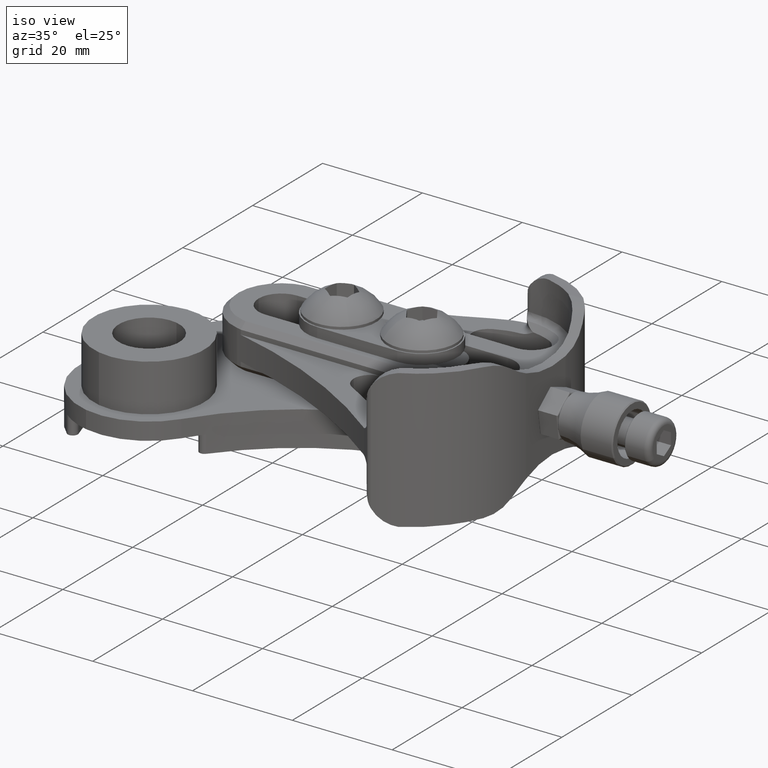
[diagram: clean part render]
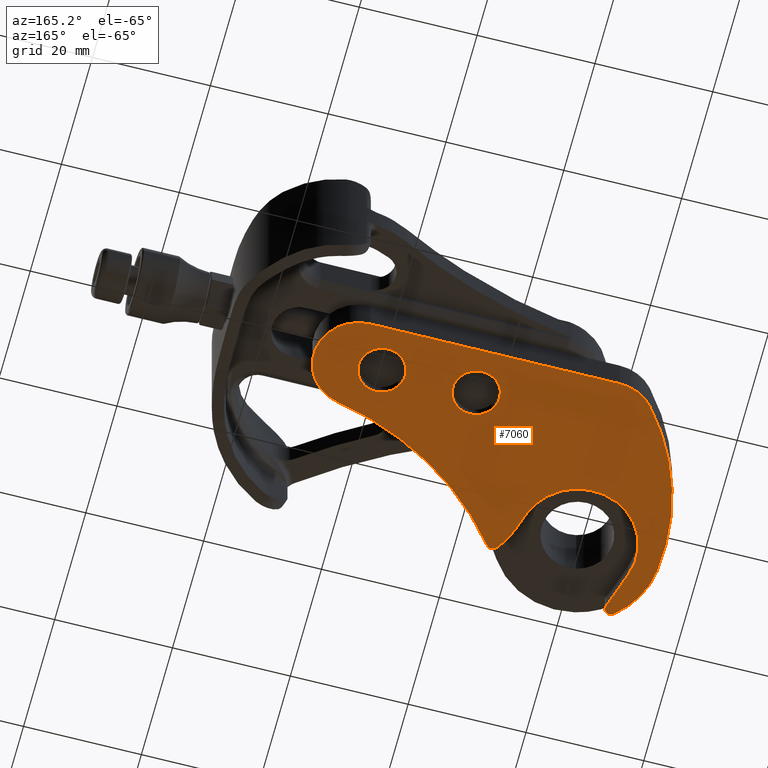
[diagram: tour spotlight — one face highlighted and labeled with its STEP entity id]
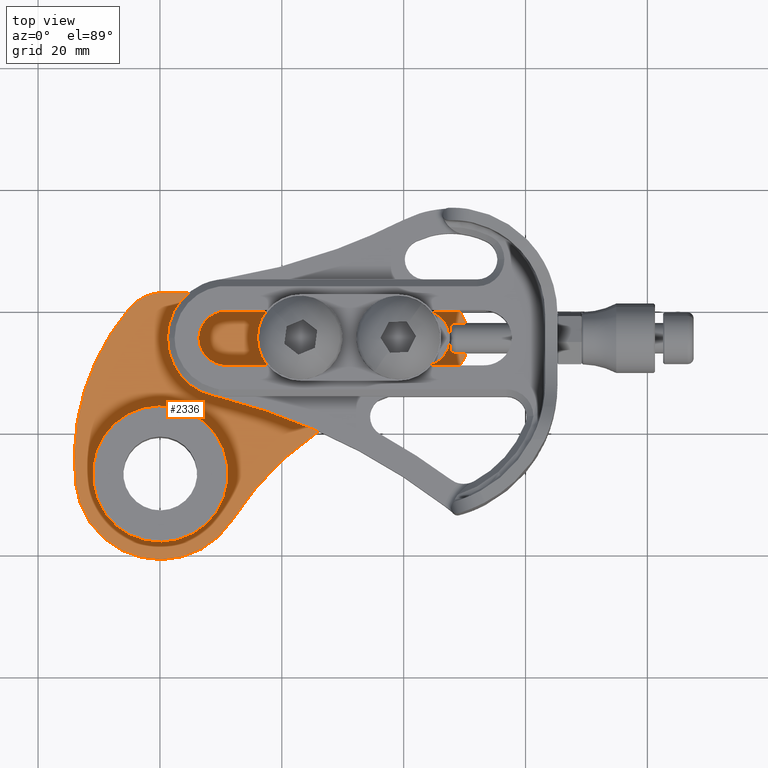
[diagram: tour spotlight — one face highlighted and labeled with its STEP entity id]
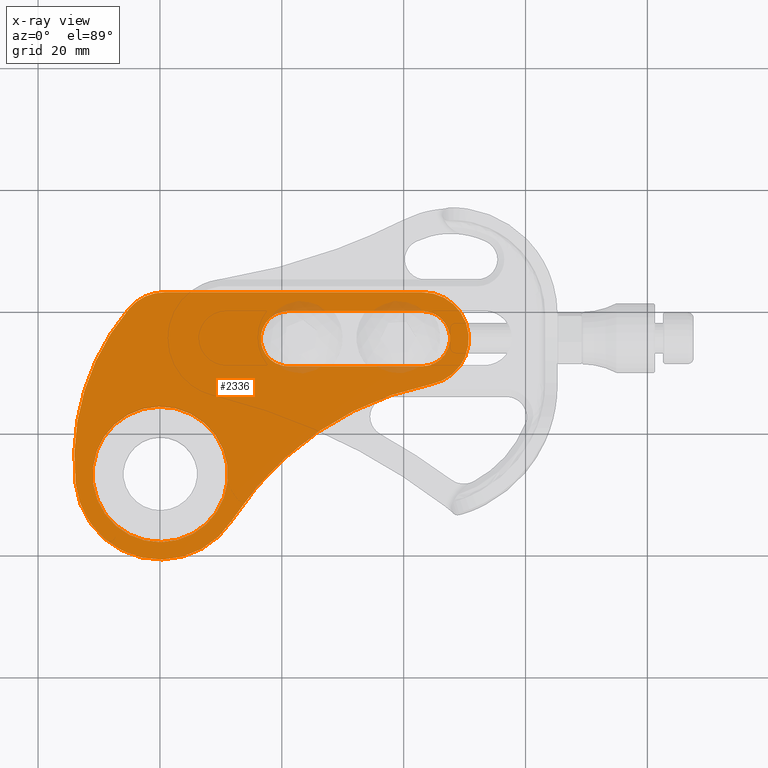
[diagram: x-ray of the same camera — body ghosted, this tour face saturated]
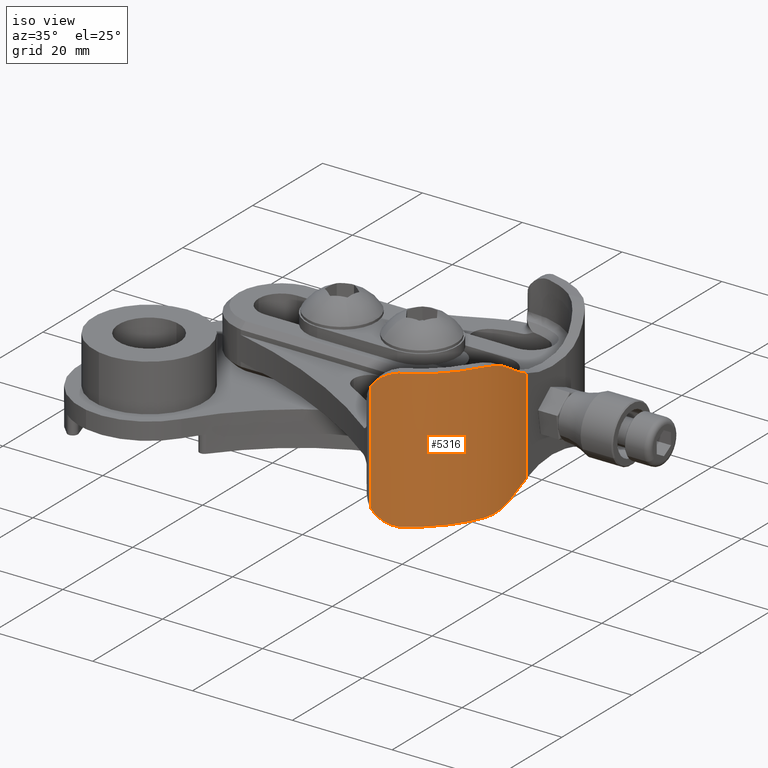
[diagram: tour spotlight — one face highlighted and labeled with its STEP entity id]
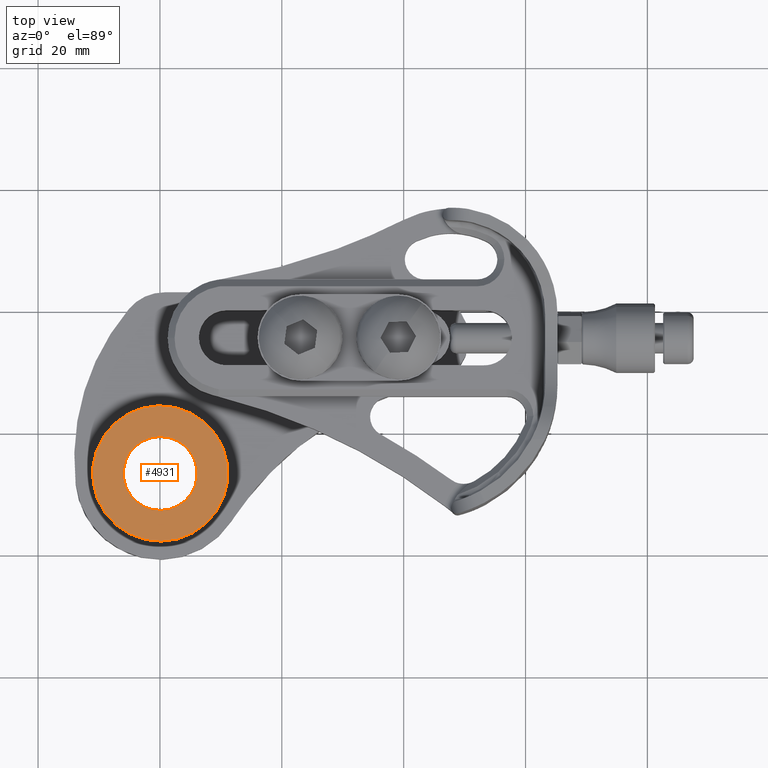
[diagram: tour spotlight — one face highlighted and labeled with its STEP entity id]
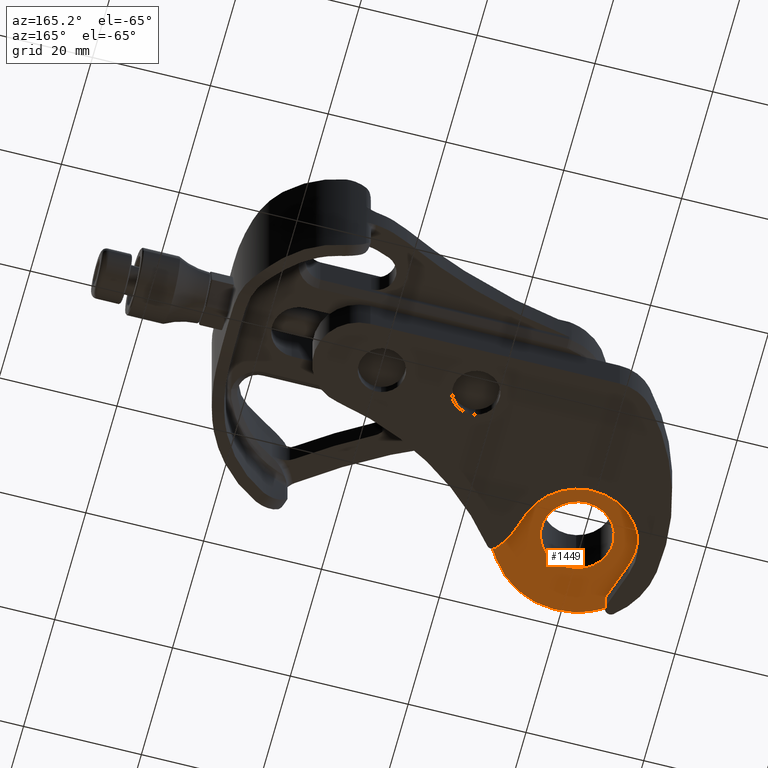
[diagram: tour spotlight — one face highlighted and labeled with its STEP entity id]
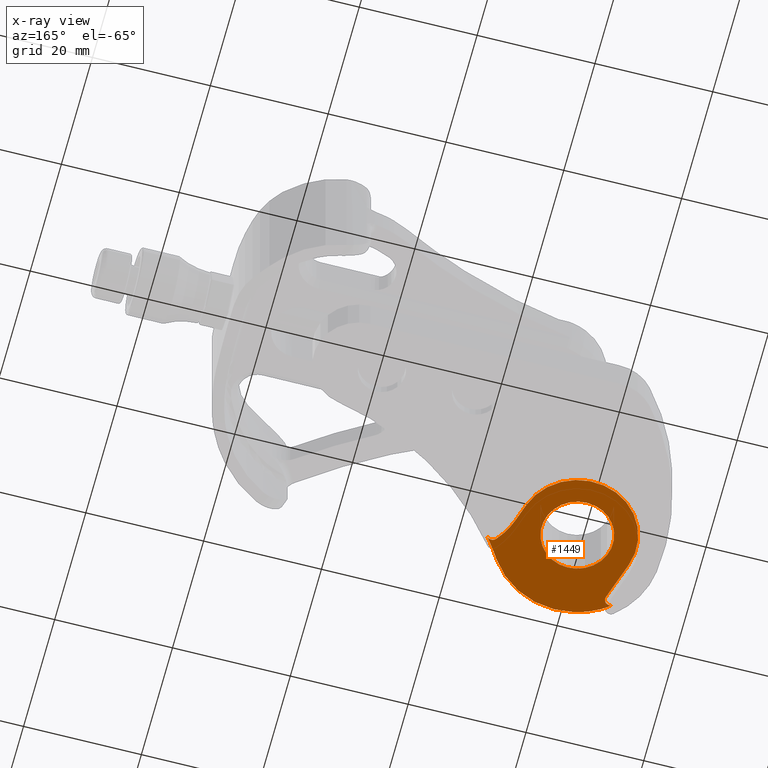
[diagram: x-ray of the same camera — body ghosted, this tour face saturated]
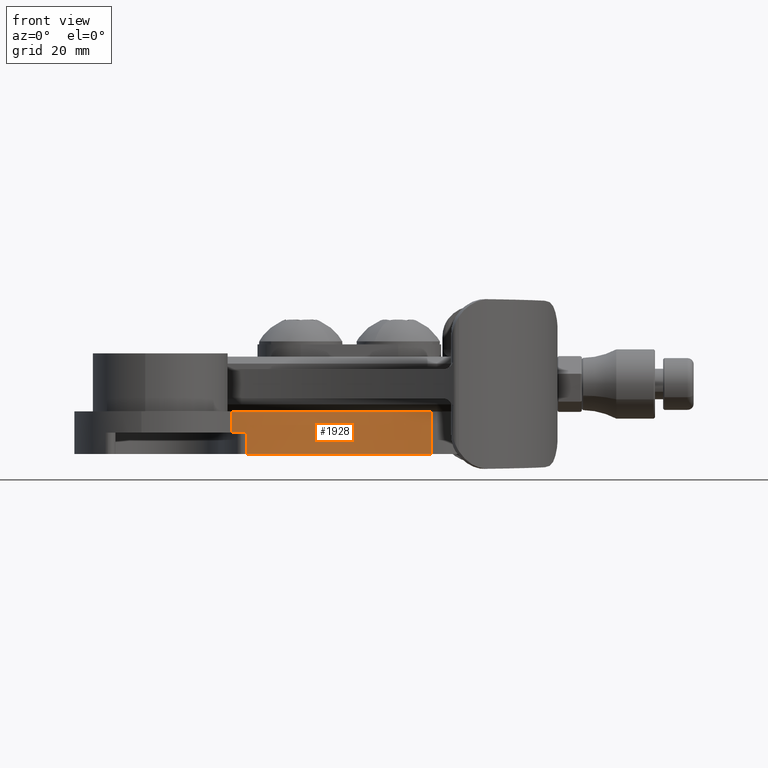
[diagram: tour spotlight — one face highlighted and labeled with its STEP entity id]
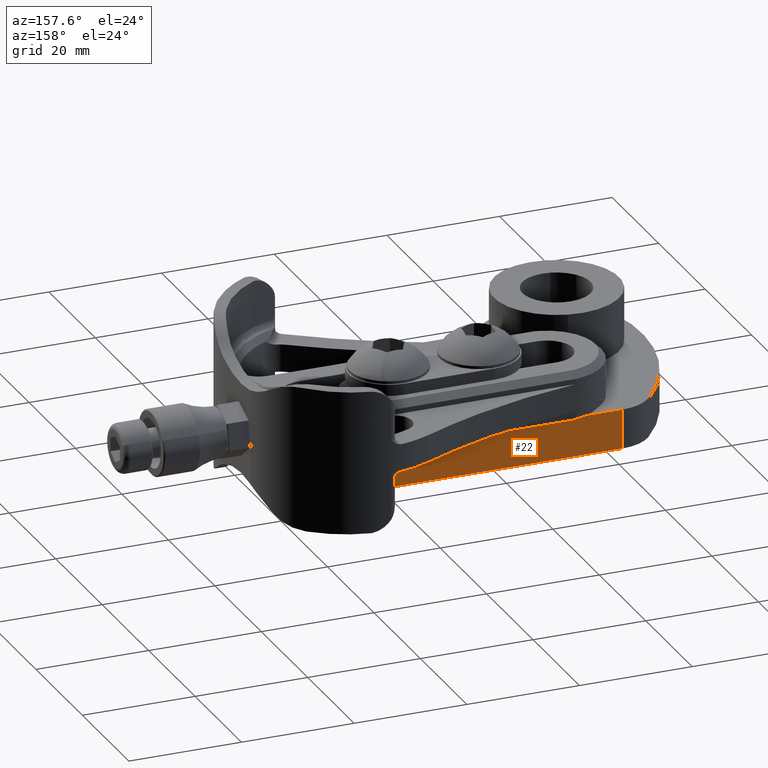
[diagram: tour spotlight — one face highlighted and labeled with its STEP entity id]
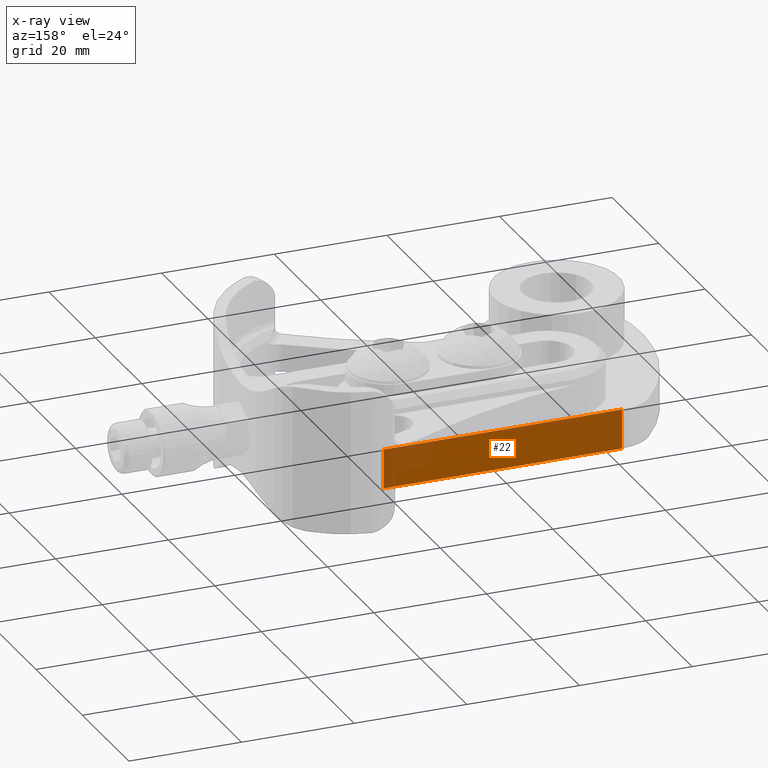
[diagram: x-ray of the same camera — body ghosted, this tour face saturated]
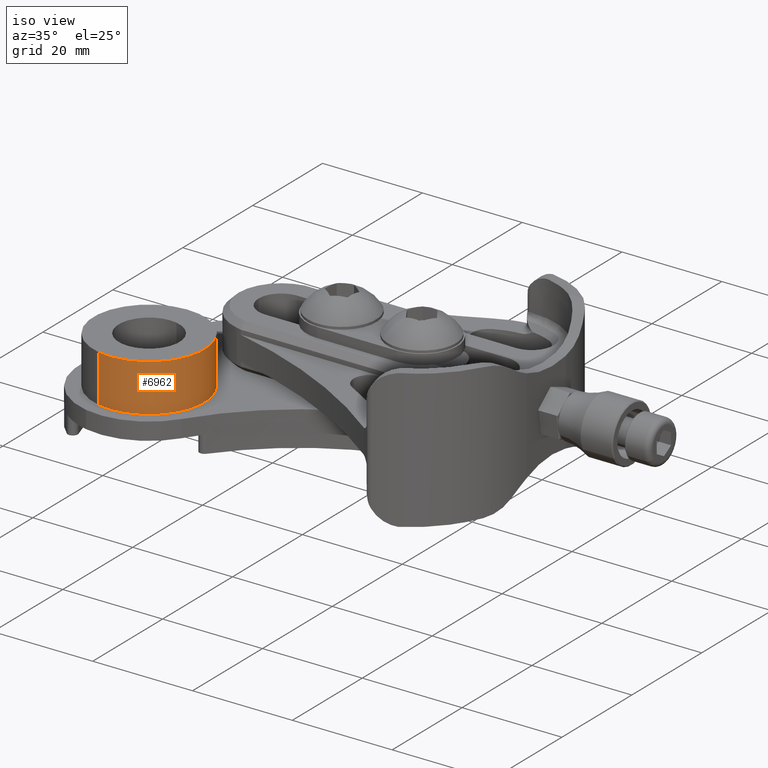
[diagram: tour spotlight — one face highlighted and labeled with its STEP entity id]
A machine part: a face-by-face anatomy tour. The part has 258 B-rep faces; the first image is the clean iso view, then the 8 largest visible faces are spotlighted one at a time (largest first), each with its STEP entity span.

Face 1 — auxiliary view, entity #7060. In plain terms, the highlighted planar face has unit normal (0, -0, 1).
Definition (entity closure, byte-faithful):
#64 = DIRECTION ( 'NONE',  ( 1.000000000000000000, 2.483498122230762136E-16, -3.793927916047296925E-29 ) ) ;
#67 = CARTESIAN_POINT ( 'NONE',  ( 4.166967540454455055, -0.4190744514127914266, 0.0000000000000000000 ) ) ;
#71 = DIRECTION ( 'NONE',  ( 1.000000000000000000, 0.0000000000000000000, -3.793927916047303652E-29 ) ) ;
#87 = CARTESIAN_POINT ( 'NONE',  ( 5.853126836954005263, -2.108239229320002739, 0.0000000000000000000 ) ) ;
#144 = CIRCLE ( 'NONE', #4648, 0.1560000000000001941 ) ;
#162 = ORIENTED_EDGE ( 'NONE', *, *, #455, .T. ) ;
#166 = VERTEX_POINT ( 'NONE', #5537 ) ;
#182 = DIRECTION ( 'NONE',  ( 1.000000000000000000, 0.0000000000000000000, -3.793927916047294123E-29 ) ) ;
#219 = EDGE_LOOP ( 'NONE', ( #5617, #5040 ) ) ;
#261 = VERTEX_POINT ( 'NONE', #8431 ) ;
#290 = CARTESIAN_POINT ( 'NONE',  ( 4.609033887613565028, -1.198543733980482973, 0.0000000000000000000 ) ) ;
#344 = CIRCLE ( 'NONE', #4805, 1.999999999999762412 ) ;
#455 = EDGE_CURVE ( 'NONE', #4097, #3690, #6864, .T. ) ;
#470 = CIRCLE ( 'NONE', #7530, 0.03937000000000007854 ) ;
#475 = VERTEX_POINT ( 'NONE', #1708 ) ;
#626 = EDGE_CURVE ( 'NONE', #676, #4097, #1151, .T. ) ;
#638 = EDGE_CURVE ( 'NONE', #4453, #872, #4559, .T. ) ;
#644 = CIRCLE ( 'NONE', #3386, 0.3000000000000005995 ) ;
#663 = CARTESIAN_POINT ( 'NONE',  ( 5.678320915236007238, -1.341924091970001731, 0.0000000000000000000 ) ) ;
#676 = VERTEX_POINT ( 'NONE', #6365 ) ;
#719 = DIRECTION ( 'NONE',  ( -3.793927916047303652E-29, -8.614299455255228524E-30, 1.000000000000000000 ) ) ;
#818 = DIRECTION ( 'NONE',  ( 1.000000000000000000, -8.673634727153472366E-15, -3.793927916047303652E-29 ) ) ;
#872 = VERTEX_POINT ( 'NONE', #1139 ) ;
#955 = CIRCLE ( 'NONE', #3589, 0.03937000000000007854 ) ;
#1058 = DIRECTION ( 'NONE',  ( 1.000000000000000000, 0.0000000000000000000, -3.793927916047297486E-29 ) ) ;
#1111 = CARTESIAN_POINT ( 'NONE',  ( 5.818432531880007197, -1.956146148625000691, 0.0000000000000000000 ) ) ;
#1139 = CARTESIAN_POINT ( 'NONE',  ( 5.662432531880007502, -1.956146148625000691, -5.918527549033801482E-30 ) ) ;
#1151 = CIRCLE ( 'NONE', #7957, 0.3937007874015757136 ) ;
#1212 = DIRECTION ( 'NONE',  ( 1.000000000000000000, 0.0000000000000000000, -3.793927916047303652E-29 ) ) ;
#1378 = ORIENTED_EDGE ( 'NONE', *, *, #9486, .T. ) ;
#1382 = CARTESIAN_POINT ( 'NONE',  ( 5.974432531880007780, -1.956146148625000691, 5.918527549033801482E-30 ) ) ;
#1433 = DIRECTION ( 'NONE',  ( 1.000000000000000000, 0.0000000000000000000, -3.793927916047303652E-29 ) ) ;
#1471 = EDGE_CURVE ( 'NONE', #8080, #3857, #3613, .T. ) ;
#1568 = CARTESIAN_POINT ( 'NONE',  ( 4.569663887613565123, -1.198543733980482973, -1.493669420547823393E-30 ) ) ;
#1584 = EDGE_CURVE ( 'NONE', #2804, #676, #4900, .T. ) ;
#1594 = CIRCLE ( 'NONE', #5070, 0.03937000000000007854 ) ;
#1624 = DIRECTION ( 'NONE',  ( 3.793927916047298607E-29, -8.614299455255217313E-30, 1.000000000000000000 ) ) ;
#1667 = ORIENTED_EDGE ( 'NONE', *, *, #1471, .F. ) ;
#1708 = CARTESIAN_POINT ( 'NONE',  ( 5.775096144362309225, -0.4172433064943889547, 0.0000000000000000000 ) ) ;
#1765 = ORIENTED_EDGE ( 'NONE', *, *, #7674, .F. ) ;
#1816 = CARTESIAN_POINT ( 'NONE',  ( 4.419419491082552831, -0.3141425130067197480, 0.0000000000000000000 ) ) ;
#1918 = AXIS2_PLACEMENT_3D ( 'NONE', #290, #5531, #1058 ) ;
#1961 = EDGE_LOOP ( 'NONE', ( #5877, #8406 ) ) ;
#2035 = DIRECTION ( 'NONE',  ( 1.000000000000000000, 0.0000000000000000000, -3.793927916047298607E-29 ) ) ;
#2098 = VECTOR ( 'NONE', #2540, 39.37007874015747433 ) ;
#2117 = VERTEX_POINT ( 'NONE', #6893 ) ;
#2197 = AXIS2_PLACEMENT_3D ( 'NONE', #87, #1624, #6851 ) ;
#2225 = EDGE_CURVE ( 'NONE', #8003, #166, #1594, .T. ) ;
#2319 = CIRCLE ( 'NONE', #7626, 0.5000000000000006661 ) ;
#2342 = CIRCLE ( 'NONE', #1918, 0.03937000000000007854 ) ;
#2360 = FACE_BOUND ( 'NONE', #1961, .T. ) ;
#2404 = AXIS2_PLACEMENT_3D ( 'NONE', #663, #5911, #1433 ) ;
#2413 = CARTESIAN_POINT ( 'NONE',  ( 5.678320915236007238, -1.341924091970001731, 0.0000000000000000000 ) ) ;
#2452 = CARTESIAN_POINT ( 'NONE',  ( 5.522320915236006655, -1.341924091970001731, -5.918527549033801482E-30 ) ) ;
#2472 = EDGE_CURVE ( 'NONE', #5065, #9007, #644, .T. ) ;
#2529 = CARTESIAN_POINT ( 'NONE',  ( 4.166967540454455055, -0.4190744514127914266, 0.0000000000000000000 ) ) ;
#2540 = DIRECTION ( 'NONE',  ( -0.2223993914988267040, 0.9749556454839121145, 4.930380657631318310E-32 ) ) ;
#2569 = CARTESIAN_POINT ( 'NONE',  ( 3.754984335640993542, -3.050469585540010353, 0.0000000000000000000 ) ) ;
#2664 = CARTESIAN_POINT ( 'NONE',  ( 5.620345138226542581, -0.2174506844849389553, 6.829619984160658046E-16 ) ) ;
#2804 = VERTEX_POINT ( 'NONE', #4399 ) ;
#2870 = ORIENTED_EDGE ( 'NONE', *, *, #7684, .F. ) ;
#2904 = VECTOR ( 'NONE', #3354, 39.37007874015748854 ) ;
#3004 = CARTESIAN_POINT ( 'NONE',  ( 4.969767118957130414, -1.484990121118513029, 0.0000000000000000000 ) ) ;
#3153 = DIRECTION ( 'NONE',  ( -3.793927916047303652E-29, -8.614299455255228524E-30, 1.000000000000000000 ) ) ;
#3242 = CARTESIAN_POINT ( 'NONE',  ( 4.441623806845695022, -0.1323182876582688905, 0.0000000000000000000 ) ) ;
#3273 = DIRECTION ( 'NONE',  ( 1.000000000000000000, -5.204180836292083893E-15, -3.793927916047300289E-29 ) ) ;
#3321 = DIRECTION ( 'NONE',  ( 1.000000000000000000, 2.731847993664587637E-16, -3.793927916047298046E-29 ) ) ;
#3354 = DIRECTION ( 'NONE',  ( 0.8585127282245510472, 0.5127922537211712095, -3.692855112565857030E-29 ) ) ;
#3386 = AXIS2_PLACEMENT_3D ( 'NONE', #4676, #6548, #2035 ) ;
#3424 = EDGE_CURVE ( 'NONE', #2117, #3803, #6824, .T. ) ;
#3589 = AXIS2_PLACEMENT_3D ( 'NONE', #67, #5295, #818 ) ;
#3613 = CIRCLE ( 'NONE', #6445, 0.5500000119207709703 ) ;
#3653 = DIRECTION ( 'NONE',  ( 1.000000000000000000, -1.387781556344555705E-14, -3.793927916047308136E-29 ) ) ;
#3690 = VERTEX_POINT ( 'NONE', #6821 ) ;
#3695 = EDGE_CURVE ( 'NONE', #8716, #8080, #6606, .T. ) ;
#3728 = CARTESIAN_POINT ( 'NONE',  ( 5.482609450716997124, -0.4839631239440058685, 0.0000000000000000000 ) ) ;
#3767 = DIRECTION ( 'NONE',  ( 1.000000000000000000, 0.0000000000000000000, -3.793927916047295244E-29 ) ) ;
#3803 = VERTEX_POINT ( 'NONE', #2452 ) ;
#3857 = VERTEX_POINT ( 'NONE', #7084 ) ;
#4097 = VERTEX_POINT ( 'NONE', #1816 ) ;
#4344 = ORIENTED_EDGE ( 'NONE', *, *, #6674, .T. ) ;
#4361 = CARTESIAN_POINT ( 'NONE',  ( 4.127597540454455149, -0.4190744514127914266, -1.493669420547823568E-30 ) ) ;
#4399 = CARTESIAN_POINT ( 'NONE',  ( 4.713370992096545642, -1.055733757006236617, 0.0000000000000000000 ) ) ;
#4447 = ORIENTED_EDGE ( 'NONE', *, *, #6542, .T. ) ;
#4453 = VERTEX_POINT ( 'NONE', #1382 ) ;
#4468 = DIRECTION ( 'NONE',  ( 1.000000000000000000, 2.276539994719227849E-16, -3.793927916047294683E-29 ) ) ;
#4559 = CIRCLE ( 'NONE', #8432, 0.1560000000000001941 ) ;
#4648 = AXIS2_PLACEMENT_3D ( 'NONE', #1111, #4724, #9403 ) ;
#4676 = CARTESIAN_POINT ( 'NONE',  ( 5.853126836954005263, -2.108239229320002739, 0.0000000000000000000 ) ) ;
#4724 = DIRECTION ( 'NONE',  ( -3.793927916047303652E-29, -8.614299455255228524E-30, 1.000000000000000000 ) ) ;
#4805 = AXIS2_PLACEMENT_3D ( 'NONE', #2569, #7731, #3321 ) ;
#4842 = AXIS2_PLACEMENT_3D ( 'NONE', #2413, #719, #71 ) ;
#4900 = LINE ( 'NONE', #9285, #2904 ) ;
#5039 = CIRCLE ( 'NONE', #2404, 0.1560000000000001941 ) ;
#5040 = ORIENTED_EDGE ( 'NONE', *, *, #3424, .T. ) ;
#5065 = VERTEX_POINT ( 'NONE', #5406 ) ;
#5070 = AXIS2_PLACEMENT_3D ( 'NONE', #8537, #6332, #3653 ) ;
#5254 = DIRECTION ( 'NONE',  ( -3.793927916047303652E-29, -8.614299455255228524E-30, 1.000000000000000000 ) ) ;
#5295 = DIRECTION ( 'NONE',  ( 3.793927916047303652E-29, 8.614299455255228524E-30, -1.000000000000000000 ) ) ;
#5406 = CARTESIAN_POINT ( 'NONE',  ( 5.579456075913198809, -2.231138841000808171, 0.0000000000000000000 ) ) ;
#5531 = DIRECTION ( 'NONE',  ( 3.793927916047303652E-29, 8.614299455255228524E-30, -1.000000000000000000 ) ) ;
#5537 = CARTESIAN_POINT ( 'NONE',  ( 4.578202054432930268, -1.174061189939442640, 0.0000000000000000000 ) ) ;
#5611 = CARTESIAN_POINT ( 'NONE',  ( 4.419419491082552831, -0.3141425130067197480, 0.0000000000000000000 ) ) ;
#5617 = ORIENTED_EDGE ( 'NONE', *, *, #6900, .T. ) ;
#5807 = EDGE_CURVE ( 'NONE', #872, #4453, #144, .T. ) ;
#5877 = ORIENTED_EDGE ( 'NONE', *, *, #5807, .T. ) ;
#5911 = DIRECTION ( 'NONE',  ( -3.793927916047303652E-29, -8.614299455255228524E-30, 1.000000000000000000 ) ) ;
#5981 = EDGE_CURVE ( 'NONE', #475, #8716, #6459, .T. ) ;
#6075 = PLANE ( 'NONE',  #2197 ) ;
#6081 = CARTESIAN_POINT ( 'NONE',  ( 6.145613530599195684, -2.041519411870416967, 5.463695987328526437E-16 ) ) ;
#6095 = FACE_OUTER_BOUND ( 'NONE', #7583, .T. ) ;
#6214 = ORIENTED_EDGE ( 'NONE', *, *, #8116, .T. ) ;
#6332 = DIRECTION ( 'NONE',  ( 3.793927916047303652E-29, 8.614299455255228524E-30, -1.000000000000000000 ) ) ;
#6365 = CARTESIAN_POINT ( 'NONE',  ( 4.823192919209457585, -0.9901367871992808878, 0.0000000000000000000 ) ) ;
#6445 = AXIS2_PLACEMENT_3D ( 'NONE', #6639, #7792, #64 ) ;
#6459 = CIRCLE ( 'NONE', #9032, 0.3000000000001306621 ) ;
#6542 = EDGE_CURVE ( 'NONE', #3690, #8357, #955, .T. ) ;
#6548 = DIRECTION ( 'NONE',  ( -3.793927916047303652E-29, -8.614299455255228524E-30, 1.000000000000000000 ) ) ;
#6590 = ORIENTED_EDGE ( 'NONE', *, *, #2472, .F. ) ;
#6606 = CIRCLE ( 'NONE', #7401, 1.500000000000006439 ) ;
#6639 = CARTESIAN_POINT ( 'NONE',  ( 4.621306205146005652, -0.6521396501029996795, 0.0000000000000000000 ) ) ;
#6674 = EDGE_CURVE ( 'NONE', #8357, #3857, #470, .T. ) ;
#6821 = CARTESIAN_POINT ( 'NONE',  ( 4.187156171483459310, -0.4528740975229916255, 0.0000000000000000000 ) ) ;
#6824 = CIRCLE ( 'NONE', #4842, 0.1560000000000001941 ) ;
#6851 = DIRECTION ( 'NONE',  ( 1.000000000000000000, 1.387778780781443950E-16, -3.793927916047298607E-29 ) ) ;
#6864 = LINE ( 'NONE', #5611, #8765 ) ;
#6887 = ORIENTED_EDGE ( 'NONE', *, *, #5981, .F. ) ;
#6893 = CARTESIAN_POINT ( 'NONE',  ( 5.834320915236006933, -1.341924091970001731, 5.918527549033801482E-30 ) ) ;
#6900 = EDGE_CURVE ( 'NONE', #3803, #2117, #5039, .T. ) ;
#6985 = CARTESIAN_POINT ( 'NONE',  ( 5.775096144362194650, -0.4172433064944149894, 0.0000000000000000000 ) ) ;
#7060 = ADVANCED_FACE ( 'NONE', ( #2360, #8252, #6095 ), #6075, .F. ) ;
#7084 = CARTESIAN_POINT ( 'NONE',  ( 4.131937650296567455, -0.4011049301190500183, 0.0000000000000000000 ) ) ;
#7219 = ORIENTED_EDGE ( 'NONE', *, *, #626, .T. ) ;
#7401 = AXIS2_PLACEMENT_3D ( 'NONE', #9390, #5254, #8050 ) ;
#7530 = AXIS2_PLACEMENT_3D ( 'NONE', #2529, #7685, #3273 ) ;
#7583 = EDGE_LOOP ( 'NONE', ( #2870, #6214, #8335, #1378, #9155, #7219, #162, #4447, #4344, #1667, #9173, #6887, #1765, #6590 ) ) ;
#7626 = AXIS2_PLACEMENT_3D ( 'NONE', #3004, #8168, #3767 ) ;
#7674 = EDGE_CURVE ( 'NONE', #9007, #475, #8241, .T. ) ;
#7684 = EDGE_CURVE ( 'NONE', #261, #5065, #344, .T. ) ;
#7685 = DIRECTION ( 'NONE',  ( 3.793927916047303652E-29, 8.614299455255228524E-30, -1.000000000000000000 ) ) ;
#7731 = DIRECTION ( 'NONE',  ( 3.793927916047303652E-29, 8.614299455255228524E-30, -1.000000000000000000 ) ) ;
#7792 = DIRECTION ( 'NONE',  ( -3.793927916047303652E-29, -8.614299455255228524E-30, 1.000000000000000000 ) ) ;
#7957 = AXIS2_PLACEMENT_3D ( 'NONE', #9087, #3153, #182 ) ;
#7973 = DIRECTION ( 'NONE',  ( -0.8585127282245516023, -0.5127922537211700993, 3.696552898059079402E-29 ) ) ;
#8003 = VERTEX_POINT ( 'NONE', #1568 ) ;
#8050 = DIRECTION ( 'NONE',  ( 1.000000000000000000, 1.821231995776167590E-16, -3.793927916047299167E-29 ) ) ;
#8080 = VERTEX_POINT ( 'NONE', #3242 ) ;
#8116 = EDGE_CURVE ( 'NONE', #261, #8003, #2342, .T. ) ;
#8168 = DIRECTION ( 'NONE',  ( 3.793927916047303652E-29, 8.614299455255228524E-30, -1.000000000000000000 ) ) ;
#8241 = LINE ( 'NONE', #6985, #2098 ) ;
#8252 = FACE_BOUND ( 'NONE', #219, .T. ) ;
#8335 = ORIENTED_EDGE ( 'NONE', *, *, #2225, .T. ) ;
#8357 = VERTEX_POINT ( 'NONE', #4361 ) ;
#8406 = ORIENTED_EDGE ( 'NONE', *, *, #638, .T. ) ;
#8431 = CARTESIAN_POINT ( 'NONE',  ( 4.592546476863596183, -1.234295128173742206, 0.0000000000000000000 ) ) ;
#8432 = AXIS2_PLACEMENT_3D ( 'NONE', #8798, #9224, #1212 ) ;
#8537 = CARTESIAN_POINT ( 'NONE',  ( 4.609033887613565028, -1.198543733980482973, 0.0000000000000000000 ) ) ;
#8716 = VERTEX_POINT ( 'NONE', #2664 ) ;
#8765 = VECTOR ( 'NONE', #7973, 39.37007874015748854 ) ;
#8798 = CARTESIAN_POINT ( 'NONE',  ( 5.818432531880007197, -1.956146148625000691, 0.0000000000000000000 ) ) ;
#8843 = DIRECTION ( 'NONE',  ( -3.793927916047303652E-29, -8.614299455255228524E-30, 1.000000000000000000 ) ) ;
#9007 = VERTEX_POINT ( 'NONE', #6081 ) ;
#9032 = AXIS2_PLACEMENT_3D ( 'NONE', #3728, #8843, #4468 ) ;
#9087 = CARTESIAN_POINT ( 'NONE',  ( 4.621306205146006540, -0.6521396501029997905, 0.0000000000000000000 ) ) ;
#9155 = ORIENTED_EDGE ( 'NONE', *, *, #1584, .T. ) ;
#9173 = ORIENTED_EDGE ( 'NONE', *, *, #3695, .F. ) ;
#9224 = DIRECTION ( 'NONE',  ( -3.793927916047303652E-29, -8.614299455255228524E-30, 1.000000000000000000 ) ) ;
#9285 = CARTESIAN_POINT ( 'NONE',  ( 4.823192919209457585, -0.9901367871992808878, 0.0000000000000000000 ) ) ;
#9390 = CARTESIAN_POINT ( 'NONE',  ( 4.931666700681005544, -1.550012881780006069, 0.0000000000000000000 ) ) ;
#9403 = DIRECTION ( 'NONE',  ( 1.000000000000000000, 0.0000000000000000000, -3.793927916047303652E-29 ) ) ;
#9486 = EDGE_CURVE ( 'NONE', #166, #2804, #2319, .T. ) ;

Face 2 — top view, entity #2336. An x-ray twin of the same camera follows (body ghosted, this face saturated) — the face is partly hidden behind the body. In plain terms, the highlighted planar face has unit normal (0, -0, 1).
Definition (entity closure, byte-faithful):
#131 = CARTESIAN_POINT ( 'NONE',  ( 6.026668941849842476, -2.068652137633273824, 0.2750000000000001887 ) ) ;
#360 = CIRCLE ( 'NONE', #4271, 0.1779999999998460591 ) ;
#484 = CARTESIAN_POINT ( 'NONE',  ( 5.660528963916002354, -1.263927640331000468, 0.2750000000000002998 ) ) ;
#565 = VERTEX_POINT ( 'NONE', #4375 ) ;
#573 = CARTESIAN_POINT ( 'NONE',  ( 5.482528963916156073, -1.263927640331000468, 0.2750000000000002998 ) ) ;
#602 = DIRECTION ( 'NONE',  ( 3.793927916047303652E-29, 8.614299455255228524E-30, -1.000000000000000000 ) ) ;
#666 = CARTESIAN_POINT ( 'NONE',  ( 4.931666700681005544, -1.550012881780006069, 0.2750000000000001887 ) ) ;
#715 = CARTESIAN_POINT ( 'NONE',  ( 5.486986859019859608, -1.303514732017755140, 0.2750000000000001887 ) ) ;
#732 = AXIS2_PLACEMENT_3D ( 'NONE', #5495, #4514, #8085 ) ;
#767 = DIRECTION ( 'NONE',  ( 3.793927916047303652E-29, 8.614299455255228524E-30, -1.000000000000000000 ) ) ;
#820 = VERTEX_POINT ( 'NONE', #2246 ) ;
#885 = AXIS2_PLACEMENT_3D ( 'NONE', #5096, #602, #5846 ) ;
#926 = DIRECTION ( 'NONE',  ( -3.793927916047303652E-29, -8.614299455255228524E-30, 1.000000000000000000 ) ) ;
#942 = VERTEX_POINT ( 'NONE', #4771 ) ;
#1033 = EDGE_CURVE ( 'NONE', #942, #3067, #7881, .T. ) ;
#1094 = EDGE_CURVE ( 'NONE', #565, #5320, #5714, .T. ) ;
#1259 = DIRECTION ( 'NONE',  ( 1.000000000000000000, 0.0000000000000000000, 0.0000000000000000000 ) ) ;
#1277 = VERTEX_POINT ( 'NONE', #1836 ) ;
#1332 = EDGE_CURVE ( 'NONE', #6067, #820, #4548, .T. ) ;
#1539 = PLANE ( 'NONE',  #9439 ) ;
#1560 = DIRECTION ( 'NONE',  ( -3.793927916047303652E-29, -8.614299455255228524E-30, 1.000000000000000000 ) ) ;
#1585 = ORIENTED_EDGE ( 'NONE', *, *, #6801, .T. ) ;
#1836 = CARTESIAN_POINT ( 'NONE',  ( 4.183806205146007429, -0.6521396501030000126, 0.2750000000000001887 ) ) ;
#2065 = AXIS2_PLACEMENT_3D ( 'NONE', #2228, #7413, #2991 ) ;
#2095 = ORIENTED_EDGE ( 'NONE', *, *, #1332, .T. ) ;
#2150 = VERTEX_POINT ( 'NONE', #4189 ) ;
#2223 = DIRECTION ( 'NONE',  ( -0.2223993914989597087, 0.9749556454838815833, 5.546678239835230499E-32 ) ) ;
#2228 = CARTESIAN_POINT ( 'NONE',  ( 4.621306205146007429, -0.6521396501030000126, 0.2750000000000001887 ) ) ;
#2246 = CARTESIAN_POINT ( 'NONE',  ( 6.026668941850000571, -2.068652137633976373, 0.2750000000000001887 ) ) ;
#2336 = ADVANCED_FACE ( 'NONE', ( #7303, #7073, #5583 ), #1539, .T. ) ;
#2518 = DIRECTION ( 'NONE',  ( -3.793927916047303652E-29, -8.614299455255228524E-30, 1.000000000000000000 ) ) ;
#2673 = DIRECTION ( 'NONE',  ( 1.000000000000000000, 1.821231995776167590E-16, 0.0000000000000000000 ) ) ;
#2720 = VERTEX_POINT ( 'NONE', #2730 ) ;
#2730 = CARTESIAN_POINT ( 'NONE',  ( 5.775096144362309225, -0.4172433064943889547, 0.2750000000000002998 ) ) ;
#2752 = CARTESIAN_POINT ( 'NONE',  ( 5.853126836954005263, -2.108239229320001407, 0.2750000000000001887 ) ) ;
#2843 = CARTESIAN_POINT ( 'NONE',  ( 4.441623806845695022, -0.1323182876582688905, 0.2750000000000001332 ) ) ;
#2848 = EDGE_LOOP ( 'NONE', ( #7706, #6446, #8776, #7527, #5759, #7659, #6560 ) ) ;
#2991 = DIRECTION ( 'NONE',  ( 1.000000000000000000, 0.0000000000000000000, 0.0000000000000000000 ) ) ;
#3054 = EDGE_CURVE ( 'NONE', #820, #2150, #4981, .T. ) ;
#3067 = VERTEX_POINT ( 'NONE', #2843 ) ;
#3129 = VERTEX_POINT ( 'NONE', #715 ) ;
#3224 = LINE ( 'NONE', #4886, #6943 ) ;
#3601 = EDGE_CURVE ( 'NONE', #5320, #2720, #7723, .T. ) ;
#3638 = AXIS2_PLACEMENT_3D ( 'NONE', #7772, #2518, #5937 ) ;
#3702 = CARTESIAN_POINT ( 'NONE',  ( 6.145613530599195684, -2.041519411870416967, 0.2750000000000001887 ) ) ;
#3816 = EDGE_CURVE ( 'NONE', #2720, #942, #4391, .T. ) ;
#3997 = EDGE_CURVE ( 'NONE', #2150, #3129, #3224, .T. ) ;
#4160 = CARTESIAN_POINT ( 'NONE',  ( 4.434452465409632893, -1.169426507716496477, 0.2750000000000001887 ) ) ;
#4162 = DIRECTION ( 'NONE',  ( 3.793927916047303652E-29, 8.614299455255228524E-30, -1.000000000000000000 ) ) ;
#4189 = CARTESIAN_POINT ( 'NONE',  ( 5.679584732058002849, -2.147826321007001660, 0.2750000000000002998 ) ) ;
#4258 = CARTESIAN_POINT ( 'NONE',  ( 4.071306193225235681, -0.6521396501029997905, 0.2750000000000001887 ) ) ;
#4265 = DIRECTION ( 'NONE',  ( -3.793927916047303652E-29, -8.614299455255228524E-30, 1.000000000000000000 ) ) ;
#4271 = AXIS2_PLACEMENT_3D ( 'NONE', #484, #5732, #1259 ) ;
#4375 = CARTESIAN_POINT ( 'NONE',  ( 5.579456075913198809, -2.231138841000808171, 0.2750000000000002998 ) ) ;
#4391 = CIRCLE ( 'NONE', #732, 0.3000000000001306621 ) ;
#4514 = DIRECTION ( 'NONE',  ( -3.793927916047303652E-29, -8.614299455255228524E-30, 1.000000000000000000 ) ) ;
#4548 = LINE ( 'NONE', #131, #7990 ) ;
#4554 = ORIENTED_EDGE ( 'NONE', *, *, #6469, .F. ) ;
#4663 = CIRCLE ( 'NONE', #6371, 1.999999999999762412 ) ;
#4751 = AXIS2_PLACEMENT_3D ( 'NONE', #5399, #926, #6161 ) ;
#4771 = CARTESIAN_POINT ( 'NONE',  ( 5.620345138226542581, -0.2174506844849389553, 0.2750000000000001887 ) ) ;
#4886 = CARTESIAN_POINT ( 'NONE',  ( 5.679584732057958441, -2.147826321006797823, 0.2750000000000002998 ) ) ;
#4939 = VERTEX_POINT ( 'NONE', #573 ) ;
#4981 = CIRCLE ( 'NONE', #9092, 0.1779999999998023441 ) ;
#5015 = ORIENTED_EDGE ( 'NONE', *, *, #3997, .T. ) ;
#5096 = CARTESIAN_POINT ( 'NONE',  ( 5.660528963916002354, -1.263927640331000468, 0.2750000000000002998 ) ) ;
#5140 = CIRCLE ( 'NONE', #7275, 0.5500000119207709703 ) ;
#5148 = CARTESIAN_POINT ( 'NONE',  ( 5.775096144362194650, -0.4172433064944149894, 0.2750000000000002998 ) ) ;
#5320 = VERTEX_POINT ( 'NONE', #3702 ) ;
#5399 = CARTESIAN_POINT ( 'NONE',  ( 4.621306205146005652, -0.6521396501029996795, 0.2750000000000001887 ) ) ;
#5495 = CARTESIAN_POINT ( 'NONE',  ( 5.482609450716997124, -0.4839631239440058685, 0.2750000000000001887 ) ) ;
#5583 = FACE_BOUND ( 'NONE', #6193, .T. ) ;
#5714 = CIRCLE ( 'NONE', #3638, 0.3000000000000005995 ) ;
#5732 = DIRECTION ( 'NONE',  ( 3.793927916047303652E-29, 8.614299455255228524E-30, -1.000000000000000000 ) ) ;
#5759 = ORIENTED_EDGE ( 'NONE', *, *, #7798, .T. ) ;
#5794 = VECTOR ( 'NONE', #6600, 39.37007874015747433 ) ;
#5826 = CIRCLE ( 'NONE', #7037, 0.4375000000000004441 ) ;
#5846 = DIRECTION ( 'NONE',  ( 1.000000000000000000, 0.0000000000000000000, 0.0000000000000000000 ) ) ;
#5884 = DIRECTION ( 'NONE',  ( -3.793927916047303652E-29, -8.614299455255228524E-30, 1.000000000000000000 ) ) ;
#5937 = DIRECTION ( 'NONE',  ( 1.000000000000000000, 0.0000000000000000000, 0.0000000000000000000 ) ) ;
#6028 = CARTESIAN_POINT ( 'NONE',  ( 5.834071068812005656, -1.224340548645001192, 0.2750000000000001887 ) ) ;
#6039 = CARTESIAN_POINT ( 'NONE',  ( 4.621306205146007429, -0.6521396501030000126, 0.2750000000000001887 ) ) ;
#6067 = VERTEX_POINT ( 'NONE', #6028 ) ;
#6161 = DIRECTION ( 'NONE',  ( 1.000000000000000000, 2.483498122230762136E-16, 0.0000000000000000000 ) ) ;
#6193 = EDGE_LOOP ( 'NONE', ( #6753, #4554 ) ) ;
#6288 = EDGE_CURVE ( 'NONE', #3129, #4939, #360, .T. ) ;
#6371 = AXIS2_PLACEMENT_3D ( 'NONE', #8547, #4162, #9253 ) ;
#6446 = ORIENTED_EDGE ( 'NONE', *, *, #3601, .T. ) ;
#6469 = EDGE_CURVE ( 'NONE', #9417, #1277, #8812, .T. ) ;
#6560 = ORIENTED_EDGE ( 'NONE', *, *, #9196, .T. ) ;
#6600 = DIRECTION ( 'NONE',  ( -0.2223993914988267040, 0.9749556454839121145, 4.930380657631318310E-32 ) ) ;
#6753 = ORIENTED_EDGE ( 'NONE', *, *, #8951, .F. ) ;
#6793 = DIRECTION ( 'NONE',  ( 1.000000000000000000, 0.0000000000000000000, 0.0000000000000000000 ) ) ;
#6801 = EDGE_CURVE ( 'NONE', #4939, #6067, #7451, .T. ) ;
#6943 = VECTOR ( 'NONE', #2223, 39.37007874015748143 ) ;
#7037 = AXIS2_PLACEMENT_3D ( 'NONE', #6039, #1560, #6793 ) ;
#7073 = FACE_OUTER_BOUND ( 'NONE', #2848, .T. ) ;
#7239 = VERTEX_POINT ( 'NONE', #4160 ) ;
#7264 = DIRECTION ( 'NONE',  ( 0.2223993914988607323, -0.9749556454839041209, -4.314083075427401742E-32 ) ) ;
#7275 = AXIS2_PLACEMENT_3D ( 'NONE', #8654, #4265, #9347 ) ;
#7303 = FACE_BOUND ( 'NONE', #8683, .T. ) ;
#7413 = DIRECTION ( 'NONE',  ( -3.793927916047303652E-29, -8.614299455255228524E-30, 1.000000000000000000 ) ) ;
#7424 = CIRCLE ( 'NONE', #4751, 0.5500000119207709703 ) ;
#7451 = CIRCLE ( 'NONE', #885, 0.1779999999998460591 ) ;
#7527 = ORIENTED_EDGE ( 'NONE', *, *, #1033, .T. ) ;
#7659 = ORIENTED_EDGE ( 'NONE', *, *, #8541, .T. ) ;
#7706 = ORIENTED_EDGE ( 'NONE', *, *, #1094, .T. ) ;
#7723 = LINE ( 'NONE', #5148, #5794 ) ;
#7772 = CARTESIAN_POINT ( 'NONE',  ( 5.853126836954005263, -2.108239229320002739, 0.2750000000000001887 ) ) ;
#7798 = EDGE_CURVE ( 'NONE', #3067, #8828, #5140, .T. ) ;
#7881 = CIRCLE ( 'NONE', #8258, 1.500000000000006439 ) ;
#7990 = VECTOR ( 'NONE', #7264, 39.37007874015748143 ) ;
#8085 = DIRECTION ( 'NONE',  ( 1.000000000000000000, 2.276539994719227849E-16, 0.0000000000000000000 ) ) ;
#8126 = DIRECTION ( 'NONE',  ( 1.000000000000000000, 1.387778780781443950E-16, -3.793927916047298607E-29 ) ) ;
#8258 = AXIS2_PLACEMENT_3D ( 'NONE', #666, #5884, #2673 ) ;
#8419 = DIRECTION ( 'NONE',  ( 3.793927916047298607E-29, -8.614299455255217313E-30, 1.000000000000000000 ) ) ;
#8453 = DIRECTION ( 'NONE',  ( 1.000000000000000000, 0.0000000000000000000, 0.0000000000000000000 ) ) ;
#8541 = EDGE_CURVE ( 'NONE', #8828, #7239, #7424, .T. ) ;
#8547 = CARTESIAN_POINT ( 'NONE',  ( 3.754984335640994875, -3.050469585540010353, 0.2750000000000001887 ) ) ;
#8620 = CARTESIAN_POINT ( 'NONE',  ( 5.853126836954005263, -2.108239229320002739, 0.2750000000000001887 ) ) ;
#8654 = CARTESIAN_POINT ( 'NONE',  ( 4.621306205146005652, -0.6521396501029996795, 0.2750000000000001887 ) ) ;
#8683 = EDGE_LOOP ( 'NONE', ( #5015, #9288, #1585, #2095, #9157 ) ) ;
#8776 = ORIENTED_EDGE ( 'NONE', *, *, #3816, .T. ) ;
#8812 = CIRCLE ( 'NONE', #2065, 0.4375000000000004441 ) ;
#8828 = VERTEX_POINT ( 'NONE', #4258 ) ;
#8951 = EDGE_CURVE ( 'NONE', #1277, #9417, #5826, .T. ) ;
#9092 = AXIS2_PLACEMENT_3D ( 'NONE', #2752, #767, #8453 ) ;
#9157 = ORIENTED_EDGE ( 'NONE', *, *, #3054, .T. ) ;
#9196 = EDGE_CURVE ( 'NONE', #7239, #565, #4663, .T. ) ;
#9253 = DIRECTION ( 'NONE',  ( 1.000000000000000000, 2.731847993664587637E-16, 0.0000000000000000000 ) ) ;
#9288 = ORIENTED_EDGE ( 'NONE', *, *, #6288, .T. ) ;
#9347 = DIRECTION ( 'NONE',  ( 1.000000000000000000, 2.483498122230762136E-16, 0.0000000000000000000 ) ) ;
#9417 = VERTEX_POINT ( 'NONE', #9457 ) ;
#9439 = AXIS2_PLACEMENT_3D ( 'NONE', #8620, #8419, #8126 ) ;
#9457 = CARTESIAN_POINT ( 'NONE',  ( 5.058806205146007429, -0.6521396501029999015, 0.2750000000000001887 ) ) ;

Face 3 — iso view, entity #5316. In plain terms, the highlighted cylindrical surface (partial cylindrical patch) has radius 22.225 mm, axis along (-0, -0, -1).
Definition (entity closure, byte-faithful):
#50 = CARTESIAN_POINT ( 'NONE',  ( 0.4672699628055527743, -1.069197143680941764, 0.5482880333341623169 ) ) ;
#74 = CARTESIAN_POINT ( 'NONE',  ( 0.5765451779310961644, -1.117675006625233891, 0.5026358817634594134 ) ) ;
#384 = CARTESIAN_POINT ( 'NONE',  ( 0.02731533453960882998, -0.5153302897482358036, -0.5058178057696772756 ) ) ;
#642 = CARTESIAN_POINT ( 'NONE',  ( -1.096763209560372684E-10, -0.2949999965320037054, 0.0000000000000000000 ) ) ;
#687 = CARTESIAN_POINT ( 'NONE',  ( 0.08113501765614872241, -0.6629719964671008103, 0.5379909813278213049 ) ) ;
#689 = CARTESIAN_POINT ( 'NONE',  ( -3.445488492270663157E-10, -0.3499205712378404276, -0.3989490081135677602 ) ) ;
#831 = CARTESIAN_POINT ( 'NONE',  ( 0.5319971515624218883, -1.100160829321682021, 0.5299022257616129439 ) ) ;
#1090 = ORIENTED_EDGE ( 'NONE', *, *, #4918, .T. ) ;
#1152 = CARTESIAN_POINT ( 'NONE',  ( 0.06408131480191436857, -0.6261802360791723920, -0.5370583786253172454 ) ) ;
#1223 = CYLINDRICAL_SURFACE ( 'NONE', #8442, 0.8750000000000007772 ) ;
#1297 = CARTESIAN_POINT ( 'NONE',  ( 0.01353665031845256717, -0.4483163312515334176, -0.4637409315620607542 ) ) ;
#1329 = VECTOR ( 'NONE', #6394, 39.37007874015748143 ) ;
#1333 = CARTESIAN_POINT ( 'NONE',  ( 0.6153639550604100839, -1.130697722082198320, -0.4653126870163121209 ) ) ;
#1400 = EDGE_CURVE ( 'NONE', #1789, #7317, #6631, .T. ) ;
#1456 = CARTESIAN_POINT ( 'NONE',  ( 0.005106482937376046437, -0.4009483817105403136, -0.4284220042329298095 ) ) ;
#1521 = VERTEX_POINT ( 'NONE', #1743 ) ;
#1545 = CARTESIAN_POINT ( 'NONE',  ( 0.08113501765614872241, -0.6629719964671008103, 0.5379909813278213049 ) ) ;
#1570 = CARTESIAN_POINT ( 'NONE',  ( 0.5764141097572549333, -1.117627577659223936, -0.5027370647717404051 ) ) ;
#1574 = CARTESIAN_POINT ( 'NONE',  ( 0.4836444159631275164, -1.077820730644199365, 0.5461581432433398886 ) ) ;
#1698 = CARTESIAN_POINT ( 'NONE',  ( 0.05004735464311362014, -0.5892189621239745101, 0.5308161689158821250 ) ) ;
#1743 = CARTESIAN_POINT ( 'NONE',  ( 0.4672699628055527743, -1.069197143680941764, 0.5482880333341623169 ) ) ;
#1778 = EDGE_CURVE ( 'NONE', #4474, #2337, #3514, .T. ) ;
#1789 = VERTEX_POINT ( 'NONE', #6030 ) ;
#2009 = EDGE_LOOP ( 'NONE', ( #7153, #3173, #7532, #2793, #4481, #6434, #1090, #5515, #6976, #4257 ) ) ;
#2022 = CARTESIAN_POINT ( 'NONE',  ( 0.005106482937375978783, -0.4009483817105405357, 0.4284220042329300315 ) ) ;
#2141 = CARTESIAN_POINT ( 'NONE',  ( 0.1625598509350250909, -0.8386384180782595621, -0.5424437984207798324 ) ) ;
#2213 =( BOUNDED_CURVE ( )  B_SPLINE_CURVE ( 3, ( #50, #4537, #6029, #1545 ),
 .UNSPECIFIED., .F., .T. ) 
 B_SPLINE_CURVE_WITH_KNOTS ( ( 4, 4 ),
 ( 0.4847387082146176196, 1.136756533847163686 ),
 .UNSPECIFIED. ) 
 CURVE ( )  GEOMETRIC_REPRESENTATION_ITEM ( )  RATIONAL_B_SPLINE_CURVE ( ( 1.000000000000000000, 0.9648853929559138010, 0.9648853929559138010, 1.000000000000000000 ) ) 
 REPRESENTATION_ITEM ( '' )  );
#2337 = VERTEX_POINT ( 'NONE', #7504 ) ;
#2395 = CARTESIAN_POINT ( 'NONE',  ( 0.08113501765614448968, -0.6629719964671016985, -0.5379909813278294095 ) ) ;
#2543 = CARTESIAN_POINT ( 'NONE',  ( 0.5901081675476559374, -1.122428669027248027, -0.4913947090185472044 ) ) ;
#2560 = VERTEX_POINT ( 'NONE', #2395 ) ;
#2781 = CARTESIAN_POINT ( 'NONE',  ( 0.4672699628056165566, -1.069197143680816975, -0.5482880333341458856 ) ) ;
#2793 = ORIENTED_EDGE ( 'NONE', *, *, #7547, .T. ) ;
#2918 = VERTEX_POINT ( 'NONE', #8112 ) ;
#3061 = CARTESIAN_POINT ( 'NONE',  ( 0.6362537153968151893, -1.136798795497983683, 0.4352989336939289133 ) ) ;
#3120 = CARTESIAN_POINT ( 'NONE',  ( 0.6265558372198363202, -1.134048337318000810, -0.4509615653565763327 ) ) ;
#3173 = ORIENTED_EDGE ( 'NONE', *, *, #6849, .T. ) ;
#3179 = EDGE_CURVE ( 'NONE', #2560, #4474, #7745, .T. ) ;
#3514 = B_SPLINE_CURVE_WITH_KNOTS ( 'NONE', 3,
 ( #7102, #5097, #8968, #8105, #3642, #1570, #2543, #1333, #3120, #3557 ),
 .UNSPECIFIED., .F., .F.,
 ( 4, 2, 2, 2, 4 ),
 ( 2.776262203529860940E-16, 0.001399333654534612491, 0.002798667309068947427, 0.004198000963603282579, 0.005597334618137613828 ),
 .UNSPECIFIED. ) ;
#3533 = VECTOR ( 'NONE', #6565, 39.37007874015748143 ) ;
#3557 = CARTESIAN_POINT ( 'NONE',  ( 0.6362537153968687020, -1.136798795497999670, -0.4352989336938429266 ) ) ;
#3604 = DIRECTION ( 'NONE',  ( -1.942569979106741571E-29, 5.152247787224733354E-30, 1.000000000000000000 ) ) ;
#3642 = CARTESIAN_POINT ( 'NONE',  ( 0.5472031956673309994, -1.106430169791027485, -0.5220773072865926290 ) ) ;
#3729 = CARTESIAN_POINT ( 'NONE',  ( 0.8749999998903247311, -0.2950000002740036931, 0.0000000000000000000 ) ) ;
#3830 = CARTESIAN_POINT ( 'NONE',  ( 0.6265559048614766091, -1.134048356502145305, 0.4509614561114321241 ) ) ;
#3933 = EDGE_CURVE ( 'NONE', #7317, #5843, #4824, .T. ) ;
#3964 = CARTESIAN_POINT ( 'NONE',  ( 0.02816185127274514755, -0.5159271735506226753, 0.5044352057838181747 ) ) ;
#4246 = CARTESIAN_POINT ( 'NONE',  ( 0.01353665031845160960, -0.4483163312515280885, 0.4637409315620671935 ) ) ;
#4257 = ORIENTED_EDGE ( 'NONE', *, *, #3179, .T. ) ;
#4456 = B_SPLINE_CURVE_WITH_KNOTS ( 'NONE', 3,
 ( #6338, #4852, #384, #5626, #1152, #6503 ),
 .UNSPECIFIED., .F., .F.,
 ( 4, 2, 4 ),
 ( 0.0000000000000000000, 0.003048536530694911754, 0.006097073061389823509 ),
 .UNSPECIFIED. ) ;
#4474 = VERTEX_POINT ( 'NONE', #8639 ) ;
#4481 = ORIENTED_EDGE ( 'NONE', *, *, #1400, .T. ) ;
#4537 = CARTESIAN_POINT ( 'NONE',  ( 0.2959556400337521875, -0.9789746521979302285, 0.5460010609659819991 ) ) ;
#4571 = CARTESIAN_POINT ( 'NONE',  ( 0.5905019300814470240, -1.122561311722531707, 0.4910211590096513201 ) ) ;
#4580 = CARTESIAN_POINT ( 'NONE',  ( 3.588879248464625590E-10, -0.2949999965319943240, 0.3754530456830473817 ) ) ;
#4638 = B_SPLINE_CURVE_WITH_KNOTS ( 'NONE', 3,
 ( #5176, #689, #1456, #6680 ),
 .UNSPECIFIED., .F., .F.,
 ( 4, 4 ),
 ( 9.082235670257418936E-13, 0.004506899887366680110 ),
 .UNSPECIFIED. ) ;
#4824 = B_SPLINE_CURVE_WITH_KNOTS ( 'NONE', 3,
 ( #7383, #2022, #7919, #6516 ),
 .UNSPECIFIED., .F., .F.,
 ( 4, 4 ),
 ( 5.421010862427522170E-20, 0.004506899886458422266 ),
 .UNSPECIFIED. ) ;
#4852 = CARTESIAN_POINT ( 'NONE',  ( 0.01927182390275842053, -0.4805414817936263239, -0.4877689454658898915 ) ) ;
#4912 = VERTEX_POINT ( 'NONE', #1297 ) ;
#4918 = EDGE_CURVE ( 'NONE', #5843, #7514, #9164, .T. ) ;
#5097 = CARTESIAN_POINT ( 'NONE',  ( 0.4836417696173164749, -1.077819336949214390, -0.5461584874640391662 ) ) ;
#5176 = CARTESIAN_POINT ( 'NONE',  ( 3.588877882540628677E-10, -0.2949999965319944906, -0.3754530456830474372 ) ) ;
#5241 = CARTESIAN_POINT ( 'NONE',  ( 3.588877882540628677E-10, -0.2949999965319944906, -0.3754530456830474372 ) ) ;
#5271 = LINE ( 'NONE', #7322, #3533 ) ;
#5309 = CARTESIAN_POINT ( 'NONE',  ( 0.5473454111624932450, -1.106487472334605870, 0.5219974178632326156 ) ) ;
#5316 = ADVANCED_FACE ( 'NONE', ( #9269 ), #1223, .T. ) ;
#5375 = B_SPLINE_CURVE_WITH_KNOTS ( 'NONE', 3,
 ( #3061, #3830, #8931, #4571, #74, #5309, #831, #6060, #1574, #6809 ),
 .UNSPECIFIED., .F., .F.,
 ( 4, 2, 2, 2, 4 ),
 ( 1.040834085586084257E-17, 0.001399437075598246099, 0.002798874151196481790, 0.004198311226794717264, 0.005597748302392953172 ),
 .UNSPECIFIED. ) ;
#5515 = ORIENTED_EDGE ( 'NONE', *, *, #5976, .T. ) ;
#5626 = CARTESIAN_POINT ( 'NONE',  ( 0.05000789017429862343, -0.5891134940767437378, -0.5307973059699263585 ) ) ;
#5691 = CARTESIAN_POINT ( 'NONE',  ( 0.06408284264086906712, -0.6261835322480587829, 0.5370584621770686518 ) ) ;
#5843 = VERTEX_POINT ( 'NONE', #4580 ) ;
#5976 = EDGE_CURVE ( 'NONE', #7514, #4912, #4638, .T. ) ;
#6029 = CARTESIAN_POINT ( 'NONE',  ( 0.1625598509350256737, -0.8386384180782601172, 0.5424437984207799435 ) ) ;
#6030 = CARTESIAN_POINT ( 'NONE',  ( 0.08113501765614872241, -0.6629719964671008103, 0.5379909813278213049 ) ) ;
#6060 = CARTESIAN_POINT ( 'NONE',  ( 0.4998892826047394156, -1.085712883924758732, 0.5420806209151624033 ) ) ;
#6082 = CARTESIAN_POINT ( 'NONE',  ( 0.01640422047116601306, -0.4644288130278607651, 0.4757548688015809102 ) ) ;
#6101 = EDGE_CURVE ( 'NONE', #2918, #1521, #5375, .T. ) ;
#6338 = CARTESIAN_POINT ( 'NONE',  ( 0.01353665031845256717, -0.4483163312515334176, -0.4637409315620607542 ) ) ;
#6394 = DIRECTION ( 'NONE',  ( 1.942569979106741571E-29, -5.152247787224734055E-30, -1.000000000000000000 ) ) ;
#6434 = ORIENTED_EDGE ( 'NONE', *, *, #3933, .T. ) ;
#6503 = CARTESIAN_POINT ( 'NONE',  ( 0.08113501765614448968, -0.6629719964671016985, -0.5379909813278294095 ) ) ;
#6516 = CARTESIAN_POINT ( 'NONE',  ( 3.588879248464625590E-10, -0.2949999965319943240, 0.3754530456830473817 ) ) ;
#6565 = DIRECTION ( 'NONE',  ( -1.942569979106741571E-29, 5.152247787224734055E-30, 1.000000000000000000 ) ) ;
#6631 = B_SPLINE_CURVE_WITH_KNOTS ( 'NONE', 3,
 ( #687, #5691, #1698, #6748, #3964, #8699, #6082, #8734 ),
 .UNSPECIFIED., .F., .F.,
 ( 4, 2, 2, 4 ),
 ( 8.284212780189022028E-17, 0.003049968602159510312, 0.004574952903239224919, 0.006099937204318939959 ),
 .UNSPECIFIED. ) ;
#6680 = CARTESIAN_POINT ( 'NONE',  ( 0.01353665031845256717, -0.4483163312515334176, -0.4637409315620607542 ) ) ;
#6748 = CARTESIAN_POINT ( 'NONE',  ( 0.03303583838664967548, -0.5339414509403220821, 0.5121270359494403124 ) ) ;
#6780 = EDGE_CURVE ( 'NONE', #4912, #2560, #4456, .T. ) ;
#6809 = CARTESIAN_POINT ( 'NONE',  ( 0.4672699628055527743, -1.069197143680941764, 0.5482880333341623169 ) ) ;
#6849 = EDGE_CURVE ( 'NONE', #2337, #2918, #5271, .T. ) ;
#6976 = ORIENTED_EDGE ( 'NONE', *, *, #6780, .T. ) ;
#7102 = CARTESIAN_POINT ( 'NONE',  ( 0.4672699628056165566, -1.069197143680816975, -0.5482880333341458856 ) ) ;
#7153 = ORIENTED_EDGE ( 'NONE', *, *, #1778, .T. ) ;
#7317 = VERTEX_POINT ( 'NONE', #4246 ) ;
#7322 = CARTESIAN_POINT ( 'NONE',  ( 0.6362537153969217707, -1.136798795498014325, 0.0000000000000000000 ) ) ;
#7383 = CARTESIAN_POINT ( 'NONE',  ( 0.01353665031845160960, -0.4483163312515280885, 0.4637409315620671935 ) ) ;
#7467 = CARTESIAN_POINT ( 'NONE',  ( 0.08113501765614448968, -0.6629719964671016985, -0.5379909813278294095 ) ) ;
#7504 = CARTESIAN_POINT ( 'NONE',  ( 0.6362537153968687020, -1.136798795497999670, -0.4352989336938429266 ) ) ;
#7514 = VERTEX_POINT ( 'NONE', #5241 ) ;
#7532 = ORIENTED_EDGE ( 'NONE', *, *, #6101, .T. ) ;
#7547 = EDGE_CURVE ( 'NONE', #1521, #1789, #2213, .T. ) ;
#7745 =( BOUNDED_CURVE ( )  B_SPLINE_CURVE ( 3, ( #7467, #2141, #7771, #2781 ),
 .UNSPECIFIED., .F., .F. ) 
 B_SPLINE_CURVE_WITH_KNOTS ( ( 4, 4 ),
 ( 2.004836119742629208, 2.656853945375173609 ),
 .UNSPECIFIED. ) 
 CURVE ( )  GEOMETRIC_REPRESENTATION_ITEM ( )  RATIONAL_B_SPLINE_CURVE ( ( 1.000000000000000000, 0.9648853929559140230, 0.9648853929559140230, 1.000000000000000000 ) ) 
 REPRESENTATION_ITEM ( '' )  );
#7771 = CARTESIAN_POINT ( 'NONE',  ( 0.2959556400337511328, -0.9789746521979291183, -0.5460010609659818881 ) ) ;
#7919 = CARTESIAN_POINT ( 'NONE',  ( -3.445488556571214616E-10, -0.3499205712378398725, 0.3989490081135675381 ) ) ;
#8105 = CARTESIAN_POINT ( 'NONE',  ( 0.5314926687348076051, -1.099941116333597702, -0.5301199470442645723 ) ) ;
#8112 = CARTESIAN_POINT ( 'NONE',  ( 0.6362537153968151893, -1.136798795497983683, 0.4352989336939289133 ) ) ;
#8205 = DIRECTION ( 'NONE',  ( 1.000000000000000000, -3.902639990948943757E-17, -1.932709217791477242E-29 ) ) ;
#8442 = AXIS2_PLACEMENT_3D ( 'NONE', #3729, #3604, #8205 ) ;
#8639 = CARTESIAN_POINT ( 'NONE',  ( 0.4672699628056165566, -1.069197143680816975, -0.5482880333341458856 ) ) ;
#8699 = CARTESIAN_POINT ( 'NONE',  ( 0.01985580282532705201, -0.4812043720597043994, 0.4862595769929301537 ) ) ;
#8734 = CARTESIAN_POINT ( 'NONE',  ( 0.01353665031845160960, -0.4483163312515280885, 0.4637409315620671935 ) ) ;
#8931 = CARTESIAN_POINT ( 'NONE',  ( 0.6154228123026070918, -1.130713204438827058, 0.4652182037609175480 ) ) ;
#8968 = CARTESIAN_POINT ( 'NONE',  ( 0.4997774129593493542, -1.085655106586280061, -0.5420961621713235035 ) ) ;
#9164 = LINE ( 'NONE', #642, #1329 ) ;
#9269 = FACE_OUTER_BOUND ( 'NONE', #2009, .T. ) ;

Face 4 — top view, entity #4931. In plain terms, the highlighted planar face has unit normal (0, -0, 1).
Definition (entity closure, byte-faithful):
#255 = CARTESIAN_POINT ( 'NONE',  ( 4.621306205146006540, -0.6521396501029997905, 0.6500000000000001332 ) ) ;
#266 = VERTEX_POINT ( 'NONE', #4488 ) ;
#271 = VERTEX_POINT ( 'NONE', #2524 ) ;
#501 = CARTESIAN_POINT ( 'NONE',  ( 4.183806205146007429, -0.6521396501030000126, 0.6500000000000001332 ) ) ;
#599 = VERTEX_POINT ( 'NONE', #501 ) ;
#916 = AXIS2_PLACEMENT_3D ( 'NONE', #255, #5492, #1022 ) ;
#1022 = DIRECTION ( 'NONE',  ( 1.000000000000000000, 0.0000000000000000000, 0.0000000000000000000 ) ) ;
#1345 = DIRECTION ( 'NONE',  ( 3.793927916047298607E-29, -8.614299455255217313E-30, 1.000000000000000000 ) ) ;
#1390 = CIRCLE ( 'NONE', #7392, 0.4375000000000004441 ) ;
#1489 = AXIS2_PLACEMENT_3D ( 'NONE', #3663, #1345, #8016 ) ;
#1554 = FACE_OUTER_BOUND ( 'NONE', #6212, .T. ) ;
#2255 = ORIENTED_EDGE ( 'NONE', *, *, #8074, .F. ) ;
#2269 = CARTESIAN_POINT ( 'NONE',  ( 4.621306205146007429, -0.6521396501030000126, 0.6500000000000001332 ) ) ;
#2468 = ORIENTED_EDGE ( 'NONE', *, *, #6487, .T. ) ;
#2498 = ORIENTED_EDGE ( 'NONE', *, *, #8358, .T. ) ;
#2524 = CARTESIAN_POINT ( 'NONE',  ( 4.382625102783801907, -0.6521396501029997905, 0.6500000000000001332 ) ) ;
#2528 = AXIS2_PLACEMENT_3D ( 'NONE', #3629, #8757, #4370 ) ;
#3018 = DIRECTION ( 'NONE',  ( 1.000000000000000000, 0.0000000000000000000, 0.0000000000000000000 ) ) ;
#3076 = AXIS2_PLACEMENT_3D ( 'NONE', #2269, #7444, #3018 ) ;
#3418 = CIRCLE ( 'NONE', #3076, 0.4375000000000004441 ) ;
#3629 = CARTESIAN_POINT ( 'NONE',  ( 4.621306205146006540, -0.6521396501029997905, 0.6500000000000001332 ) ) ;
#3663 = CARTESIAN_POINT ( 'NONE',  ( 4.621306205146007429, -0.6521396501030000126, 0.6500000000000001332 ) ) ;
#3999 = CIRCLE ( 'NONE', #2528, 0.2386811023622052164 ) ;
#4370 = DIRECTION ( 'NONE',  ( 1.000000000000000000, 0.0000000000000000000, 0.0000000000000000000 ) ) ;
#4400 = CARTESIAN_POINT ( 'NONE',  ( 4.621306205146007429, -0.6521396501030000126, 0.6500000000000001332 ) ) ;
#4488 = CARTESIAN_POINT ( 'NONE',  ( 5.058806205146007429, -0.6521396501029999015, 0.6500000000000001332 ) ) ;
#4593 = ORIENTED_EDGE ( 'NONE', *, *, #7390, .F. ) ;
#4931 = ADVANCED_FACE ( 'NONE', ( #1554, #8941 ), #5494, .T. ) ;
#5139 = DIRECTION ( 'NONE',  ( 1.000000000000000000, 0.0000000000000000000, 0.0000000000000000000 ) ) ;
#5492 = DIRECTION ( 'NONE',  ( -3.793927916047303652E-29, -8.614299455255228524E-30, 1.000000000000000000 ) ) ;
#5494 = PLANE ( 'NONE',  #1489 ) ;
#6151 = VERTEX_POINT ( 'NONE', #6165 ) ;
#6165 = CARTESIAN_POINT ( 'NONE',  ( 4.859987307508211174, -0.6521396501029997905, 0.6500000000000001332 ) ) ;
#6212 = EDGE_LOOP ( 'NONE', ( #2498, #2468 ) ) ;
#6487 = EDGE_CURVE ( 'NONE', #266, #599, #3418, .T. ) ;
#6543 = CIRCLE ( 'NONE', #916, 0.2386811023622052164 ) ;
#7390 = EDGE_CURVE ( 'NONE', #271, #6151, #3999, .T. ) ;
#7392 = AXIS2_PLACEMENT_3D ( 'NONE', #4400, #9479, #5139 ) ;
#7444 = DIRECTION ( 'NONE',  ( -3.793927916047303652E-29, -8.614299455255228524E-30, 1.000000000000000000 ) ) ;
#8016 = DIRECTION ( 'NONE',  ( 1.000000000000000000, 1.387778780781443950E-16, -3.793927916047298607E-29 ) ) ;
#8074 = EDGE_CURVE ( 'NONE', #6151, #271, #6543, .T. ) ;
#8358 = EDGE_CURVE ( 'NONE', #599, #266, #1390, .T. ) ;
#8448 = EDGE_LOOP ( 'NONE', ( #4593, #2255 ) ) ;
#8757 = DIRECTION ( 'NONE',  ( -3.793927916047303652E-29, -8.614299455255228524E-30, 1.000000000000000000 ) ) ;
#8941 = FACE_BOUND ( 'NONE', #8448, .T. ) ;
#9479 = DIRECTION ( 'NONE',  ( -3.793927916047303652E-29, -8.614299455255228524E-30, 1.000000000000000000 ) ) ;

Face 5 — auxiliary view, entity #1449. An x-ray twin of the same camera follows (body ghosted, this face saturated) — the face is partly hidden behind the body. In plain terms, the highlighted planar face has unit normal (0, -0, 1).
Definition (entity closure, byte-faithful):
#135 = DIRECTION ( 'NONE',  ( -3.793927916047303652E-29, -8.614299455255228524E-30, 1.000000000000000000 ) ) ;
#153 = EDGE_CURVE ( 'NONE', #2393, #5772, #3738, .T. ) ;
#189 = CARTESIAN_POINT ( 'NONE',  ( 4.434452465409632893, -1.169426507716496477, 0.1377952755905512972 ) ) ;
#265 = EDGE_CURVE ( 'NONE', #4301, #3319, #2790, .T. ) ;
#364 = DIRECTION ( 'NONE',  ( 1.000000000000000000, 2.483498122230762136E-16, 0.0000000000000000000 ) ) ;
#520 = AXIS2_PLACEMENT_3D ( 'NONE', #7458, #9175, #2471 ) ;
#560 = ORIENTED_EDGE ( 'NONE', *, *, #4122, .F. ) ;
#601 = CARTESIAN_POINT ( 'NONE',  ( 4.969767118957130414, -1.484990121118513029, 0.1377952755905512972 ) ) ;
#659 = CARTESIAN_POINT ( 'NONE',  ( 4.592546476863596183, -1.234295128173742206, 0.1377952755905512972 ) ) ;
#858 = DIRECTION ( 'NONE',  ( -3.793927916047303652E-29, -8.614299455255228524E-30, 1.000000000000000000 ) ) ;
#1020 = AXIS2_PLACEMENT_3D ( 'NONE', #2072, #7283, #2842 ) ;
#1176 = ORIENTED_EDGE ( 'NONE', *, *, #5350, .F. ) ;
#1220 = DIRECTION ( 'NONE',  ( 0.8585127282245510472, 0.5127922537211713205, -3.694087707730263740E-29 ) ) ;
#1311 = VERTEX_POINT ( 'NONE', #5287 ) ;
#1449 = ADVANCED_FACE ( 'NONE', ( #5590, #5822 ), #7092, .F. ) ;
#1457 = ORIENTED_EDGE ( 'NONE', *, *, #153, .T. ) ;
#1496 = ORIENTED_EDGE ( 'NONE', *, *, #6599, .T. ) ;
#1510 = DIRECTION ( 'NONE',  ( 3.793927916047303652E-29, 8.614299455255228524E-30, -1.000000000000000000 ) ) ;
#1537 = AXIS2_PLACEMENT_3D ( 'NONE', #6404, #1933, #7138 ) ;
#1618 = ORIENTED_EDGE ( 'NONE', *, *, #8711, .F. ) ;
#1626 = CARTESIAN_POINT ( 'NONE',  ( 4.823192919209457585, -0.9901367871992808878, 0.1377952755905512972 ) ) ;
#1715 = LINE ( 'NONE', #5522, #3246 ) ;
#1783 = CARTESIAN_POINT ( 'NONE',  ( 4.823192919209457585, -0.9901367871992808878, 0.1377952755905512972 ) ) ;
#1825 = CARTESIAN_POINT ( 'NONE',  ( 3.754984335640994875, -3.050469585540010353, 0.1377952755905512972 ) ) ;
#1897 = EDGE_CURVE ( 'NONE', #8742, #2403, #1715, .T. ) ;
#1901 = CIRCLE ( 'NONE', #7966, 0.5000000000000006661 ) ;
#1933 = DIRECTION ( 'NONE',  ( 3.793927916047303652E-29, 8.614299455255228524E-30, -1.000000000000000000 ) ) ;
#2072 = CARTESIAN_POINT ( 'NONE',  ( 4.166967540454455055, -0.4190744514127914266, 0.1377952755905512972 ) ) ;
#2227 = CIRCLE ( 'NONE', #1020, 0.03937000000000007854 ) ;
#2278 = DIRECTION ( 'NONE',  ( 3.793927916047298607E-29, -8.614299455255217313E-30, 1.000000000000000000 ) ) ;
#2393 = VERTEX_POINT ( 'NONE', #8394 ) ;
#2400 = VERTEX_POINT ( 'NONE', #3696 ) ;
#2403 = VERTEX_POINT ( 'NONE', #6168 ) ;
#2415 = CARTESIAN_POINT ( 'NONE',  ( 4.127597540454455149, -0.4190744514127914266, 0.1377952755905512972 ) ) ;
#2471 = DIRECTION ( 'NONE',  ( 1.000000000000000000, 0.0000000000000000000, 0.0000000000000000000 ) ) ;
#2566 = AXIS2_PLACEMENT_3D ( 'NONE', #4888, #3971, #5208 ) ;
#2759 = ORIENTED_EDGE ( 'NONE', *, *, #7729, .F. ) ;
#2790 = LINE ( 'NONE', #1783, #8440 ) ;
#2840 = EDGE_LOOP ( 'NONE', ( #1618, #8212 ) ) ;
#2842 = DIRECTION ( 'NONE',  ( 1.000000000000000000, 0.0000000000000000000, 0.0000000000000000000 ) ) ;
#2919 = CARTESIAN_POINT ( 'NONE',  ( 4.166967540454455055, -0.4190744514127914266, 0.1377952755905512972 ) ) ;
#2971 = CARTESIAN_POINT ( 'NONE',  ( 4.071306193225235681, -0.6521396501029997905, 0.1377952755905512972 ) ) ;
#3133 = DIRECTION ( 'NONE',  ( 1.000000000000000000, 1.338605516895647952E-14, 0.0000000000000000000 ) ) ;
#3246 = VECTOR ( 'NONE', #7091, 39.37007874015748143 ) ;
#3319 = VERTEX_POINT ( 'NONE', #1626 ) ;
#3374 = CARTESIAN_POINT ( 'NONE',  ( 4.859987307508211174, -0.6521396501029997905, 0.1377952755905512972 ) ) ;
#3377 = VERTEX_POINT ( 'NONE', #9434 ) ;
#3686 = EDGE_CURVE ( 'NONE', #5901, #5772, #8522, .T. ) ;
#3696 = CARTESIAN_POINT ( 'NONE',  ( 4.131937650296567455, -0.4011049301190500183, 0.1377952755905512972 ) ) ;
#3738 = CIRCLE ( 'NONE', #520, 0.03937000000000007854 ) ;
#3971 = DIRECTION ( 'NONE',  ( -3.793927916047303652E-29, -8.614299455255228524E-30, 1.000000000000000000 ) ) ;
#4058 = DIRECTION ( 'NONE',  ( 3.793927916047303652E-29, 8.614299455255228524E-30, -1.000000000000000000 ) ) ;
#4061 = EDGE_CURVE ( 'NONE', #6128, #2403, #6716, .T. ) ;
#4122 = EDGE_CURVE ( 'NONE', #6019, #5901, #6258, .T. ) ;
#4156 = EDGE_LOOP ( 'NONE', ( #6919, #8794, #6225, #1176, #1496, #1457, #4380, #560, #2759, #9379, #6904 ) ) ;
#4186 = CARTESIAN_POINT ( 'NONE',  ( 4.621306205146006540, -0.6521396501029997905, 0.1377952755905512972 ) ) ;
#4245 = AXIS2_PLACEMENT_3D ( 'NONE', #5333, #858, #6091 ) ;
#4301 = VERTEX_POINT ( 'NONE', #7815 ) ;
#4380 = ORIENTED_EDGE ( 'NONE', *, *, #3686, .F. ) ;
#4569 = VERTEX_POINT ( 'NONE', #3374 ) ;
#4625 = CARTESIAN_POINT ( 'NONE',  ( 4.609033887613565028, -1.198543733980482973, 0.1377952755905512972 ) ) ;
#4864 = DIRECTION ( 'NONE',  ( -3.793927916047303652E-29, -8.614299455255228524E-30, 1.000000000000000000 ) ) ;
#4888 = CARTESIAN_POINT ( 'NONE',  ( 4.621306205146005652, -0.6521396501029996795, 0.1377952755905512972 ) ) ;
#5208 = DIRECTION ( 'NONE',  ( 1.000000000000000000, 2.483498122230762136E-16, 0.0000000000000000000 ) ) ;
#5287 = CARTESIAN_POINT ( 'NONE',  ( 4.382625102783801907, -0.6521396501029997905, 0.1377952755905512972 ) ) ;
#5333 = CARTESIAN_POINT ( 'NONE',  ( 4.621306205146006540, -0.6521396501029997905, 0.1377952755905512972 ) ) ;
#5350 = EDGE_CURVE ( 'NONE', #3377, #4301, #1901, .T. ) ;
#5362 = DIRECTION ( 'NONE',  ( 1.000000000000000000, 0.0000000000000000000, 0.0000000000000000000 ) ) ;
#5522 = CARTESIAN_POINT ( 'NONE',  ( 4.419419491082552831, -0.3141425130067195814, 0.1377952755905512972 ) ) ;
#5582 = AXIS2_PLACEMENT_3D ( 'NONE', #4625, #135, #5362 ) ;
#5590 = FACE_OUTER_BOUND ( 'NONE', #4156, .T. ) ;
#5772 = VERTEX_POINT ( 'NONE', #659 ) ;
#5791 = DIRECTION ( 'NONE',  ( -3.793927916047303652E-29, -8.614299455255228524E-30, 1.000000000000000000 ) ) ;
#5822 = FACE_BOUND ( 'NONE', #2840, .T. ) ;
#5901 = VERTEX_POINT ( 'NONE', #189 ) ;
#5941 = CIRCLE ( 'NONE', #4245, 0.3937007874015757136 ) ;
#5990 = CARTESIAN_POINT ( 'NONE',  ( 4.621306205146006540, -0.6521396501029997905, 0.1377952755905512972 ) ) ;
#6019 = VERTEX_POINT ( 'NONE', #2971 ) ;
#6022 = AXIS2_PLACEMENT_3D ( 'NONE', #5990, #1510, #6742 ) ;
#6053 = DIRECTION ( 'NONE',  ( 1.000000000000000000, 0.0000000000000000000, 0.0000000000000000000 ) ) ;
#6091 = DIRECTION ( 'NONE',  ( 1.000000000000000000, 0.0000000000000000000, 0.0000000000000000000 ) ) ;
#6128 = VERTEX_POINT ( 'NONE', #2415 ) ;
#6168 = CARTESIAN_POINT ( 'NONE',  ( 4.187156171483459310, -0.4528740975229916255, 0.1377952755905512972 ) ) ;
#6225 = ORIENTED_EDGE ( 'NONE', *, *, #265, .F. ) ;
#6258 = CIRCLE ( 'NONE', #2566, 0.5500000119207709703 ) ;
#6404 = CARTESIAN_POINT ( 'NONE',  ( 4.621306205146006540, -0.6521396501029997905, 0.1377952755905512972 ) ) ;
#6525 = DIRECTION ( 'NONE',  ( 1.000000000000000000, 1.387778780781443950E-16, -3.793927916047298607E-29 ) ) ;
#6599 = EDGE_CURVE ( 'NONE', #3377, #2393, #6679, .T. ) ;
#6679 = CIRCLE ( 'NONE', #5582, 0.03937000000000007854 ) ;
#6716 = CIRCLE ( 'NONE', #9145, 0.03937000000000007854 ) ;
#6742 = DIRECTION ( 'NONE',  ( 1.000000000000000000, 0.0000000000000000000, 0.0000000000000000000 ) ) ;
#6796 = AXIS2_PLACEMENT_3D ( 'NONE', #9204, #4864, #364 ) ;
#6904 = ORIENTED_EDGE ( 'NONE', *, *, #4061, .T. ) ;
#6919 = ORIENTED_EDGE ( 'NONE', *, *, #1897, .F. ) ;
#6928 = AXIS2_PLACEMENT_3D ( 'NONE', #1825, #9404, #3133 ) ;
#6936 = AXIS2_PLACEMENT_3D ( 'NONE', #4186, #2278, #6525 ) ;
#7091 = DIRECTION ( 'NONE',  ( -0.8585127282245516023, -0.5127922537211703213, 3.692855112565855909E-29 ) ) ;
#7092 = PLANE ( 'NONE',  #6936 ) ;
#7138 = DIRECTION ( 'NONE',  ( 1.000000000000000000, 0.0000000000000000000, 0.0000000000000000000 ) ) ;
#7283 = DIRECTION ( 'NONE',  ( -3.793927916047303652E-29, -8.614299455255228524E-30, 1.000000000000000000 ) ) ;
#7376 = EDGE_CURVE ( 'NONE', #2400, #6128, #2227, .T. ) ;
#7458 = CARTESIAN_POINT ( 'NONE',  ( 4.609033887613565028, -1.198543733980482973, 0.1377952755905512972 ) ) ;
#7499 = EDGE_CURVE ( 'NONE', #4569, #1311, #9126, .T. ) ;
#7729 = EDGE_CURVE ( 'NONE', #2400, #6019, #9448, .T. ) ;
#7815 = CARTESIAN_POINT ( 'NONE',  ( 4.713370992096545642, -1.055733757006236617, 0.1377952755905513804 ) ) ;
#7864 = DIRECTION ( 'NONE',  ( 1.000000000000000000, 0.0000000000000000000, 0.0000000000000000000 ) ) ;
#7929 = CARTESIAN_POINT ( 'NONE',  ( 4.419419491082552831, -0.3141425130067195814, 0.1377952755905512972 ) ) ;
#7966 = AXIS2_PLACEMENT_3D ( 'NONE', #601, #4058, #7864 ) ;
#8212 = ORIENTED_EDGE ( 'NONE', *, *, #7499, .F. ) ;
#8394 = CARTESIAN_POINT ( 'NONE',  ( 4.569663887613565123, -1.198543733980482973, 0.1377952755905512972 ) ) ;
#8440 = VECTOR ( 'NONE', #1220, 39.37007874015748143 ) ;
#8483 = EDGE_CURVE ( 'NONE', #3319, #8742, #5941, .T. ) ;
#8522 = CIRCLE ( 'NONE', #6928, 1.999999999999762412 ) ;
#8711 = EDGE_CURVE ( 'NONE', #1311, #4569, #9108, .T. ) ;
#8742 = VERTEX_POINT ( 'NONE', #7929 ) ;
#8794 = ORIENTED_EDGE ( 'NONE', *, *, #8483, .F. ) ;
#9108 = CIRCLE ( 'NONE', #1537, 0.2386811023622052164 ) ;
#9126 = CIRCLE ( 'NONE', #6022, 0.2386811023622052164 ) ;
#9145 = AXIS2_PLACEMENT_3D ( 'NONE', #2919, #5791, #6053 ) ;
#9175 = DIRECTION ( 'NONE',  ( -3.793927916047303652E-29, -8.614299455255228524E-30, 1.000000000000000000 ) ) ;
#9204 = CARTESIAN_POINT ( 'NONE',  ( 4.621306205146005652, -0.6521396501029996795, 0.1377952755905512972 ) ) ;
#9379 = ORIENTED_EDGE ( 'NONE', *, *, #7376, .T. ) ;
#9404 = DIRECTION ( 'NONE',  ( 3.793927916047303652E-29, 8.614299455255228524E-30, -1.000000000000000000 ) ) ;
#9434 = CARTESIAN_POINT ( 'NONE',  ( 4.578202054432930268, -1.174061189939442640, 0.1377952755905512972 ) ) ;
#9448 = CIRCLE ( 'NONE', #6796, 0.5500000119207709703 ) ;

Face 6 — front view, entity #1928. In plain terms, the highlighted cylindrical surface (partial cylindrical patch) has radius 50.8 mm, axis along (-0, 0, -1).
Definition (entity closure, byte-faithful):
#132 = ORIENTED_EDGE ( 'NONE', *, *, #7087, .T. ) ;
#189 = CARTESIAN_POINT ( 'NONE',  ( 4.434452465409632893, -1.169426507716496477, 0.1377952755905512972 ) ) ;
#261 = VERTEX_POINT ( 'NONE', #8431 ) ;
#344 = CIRCLE ( 'NONE', #4805, 1.999999999999762412 ) ;
#565 = VERTEX_POINT ( 'NONE', #4375 ) ;
#659 = CARTESIAN_POINT ( 'NONE',  ( 4.592546476863596183, -1.234295128173742206, 0.1377952755905512972 ) ) ;
#703 = VECTOR ( 'NONE', #4046, 39.37007874015748143 ) ;
#776 = FACE_OUTER_BOUND ( 'NONE', #5770, .T. ) ;
#1203 = EDGE_CURVE ( 'NONE', #7239, #5901, #7199, .T. ) ;
#1825 = CARTESIAN_POINT ( 'NONE',  ( 3.754984335640994875, -3.050469585540010353, 0.1377952755905512972 ) ) ;
#1928 = ADVANCED_FACE ( 'NONE', ( #776 ), #8209, .F. ) ;
#2059 = AXIS2_PLACEMENT_3D ( 'NONE', #7490, #8878, #7457 ) ;
#2110 = LINE ( 'NONE', #8305, #9458 ) ;
#2558 = CARTESIAN_POINT ( 'NONE',  ( 5.579456075913198809, -2.231138841000808171, 0.2750000000000002998 ) ) ;
#2569 = CARTESIAN_POINT ( 'NONE',  ( 3.754984335640993542, -3.050469585540010353, 0.0000000000000000000 ) ) ;
#2702 = ORIENTED_EDGE ( 'NONE', *, *, #9196, .F. ) ;
#3133 = DIRECTION ( 'NONE',  ( 1.000000000000000000, 1.338605516895647952E-14, 0.0000000000000000000 ) ) ;
#3222 = ORIENTED_EDGE ( 'NONE', *, *, #1203, .T. ) ;
#3321 = DIRECTION ( 'NONE',  ( 1.000000000000000000, 2.731847993664587637E-16, -3.793927916047298046E-29 ) ) ;
#3562 = ORIENTED_EDGE ( 'NONE', *, *, #7684, .T. ) ;
#3686 = EDGE_CURVE ( 'NONE', #5901, #5772, #8522, .T. ) ;
#4046 = DIRECTION ( 'NONE',  ( 3.793927916047303652E-29, 8.614299455255228524E-30, -1.000000000000000000 ) ) ;
#4160 = CARTESIAN_POINT ( 'NONE',  ( 4.434452465409632893, -1.169426507716496477, 0.2750000000000001887 ) ) ;
#4162 = DIRECTION ( 'NONE',  ( 3.793927916047303652E-29, 8.614299455255228524E-30, -1.000000000000000000 ) ) ;
#4232 = LINE ( 'NONE', #2558, #703 ) ;
#4375 = CARTESIAN_POINT ( 'NONE',  ( 5.579456075913198809, -2.231138841000808171, 0.2750000000000002998 ) ) ;
#4378 = ORIENTED_EDGE ( 'NONE', *, *, #3686, .T. ) ;
#4524 = CARTESIAN_POINT ( 'NONE',  ( 4.434452465409632893, -1.169426507716496477, 0.2750000000000001887 ) ) ;
#4663 = CIRCLE ( 'NONE', #6371, 1.999999999999762412 ) ;
#4805 = AXIS2_PLACEMENT_3D ( 'NONE', #2569, #7731, #3321 ) ;
#5065 = VERTEX_POINT ( 'NONE', #5406 ) ;
#5406 = CARTESIAN_POINT ( 'NONE',  ( 5.579456075913198809, -2.231138841000808171, 0.0000000000000000000 ) ) ;
#5770 = EDGE_LOOP ( 'NONE', ( #4378, #132, #3562, #8077, #2702, #3222 ) ) ;
#5772 = VERTEX_POINT ( 'NONE', #659 ) ;
#5901 = VERTEX_POINT ( 'NONE', #189 ) ;
#6010 = DIRECTION ( 'NONE',  ( 3.793927916047303652E-29, 8.614299455255228524E-30, -1.000000000000000000 ) ) ;
#6149 = DIRECTION ( 'NONE',  ( 3.793927916047303652E-29, 8.614299455255228524E-30, -1.000000000000000000 ) ) ;
#6371 = AXIS2_PLACEMENT_3D ( 'NONE', #8547, #4162, #9253 ) ;
#6695 = EDGE_CURVE ( 'NONE', #565, #5065, #4232, .T. ) ;
#6928 = AXIS2_PLACEMENT_3D ( 'NONE', #1825, #9404, #3133 ) ;
#7087 = EDGE_CURVE ( 'NONE', #5772, #261, #2110, .T. ) ;
#7199 = LINE ( 'NONE', #4524, #7419 ) ;
#7239 = VERTEX_POINT ( 'NONE', #4160 ) ;
#7419 = VECTOR ( 'NONE', #6010, 39.37007874015748143 ) ;
#7457 = DIRECTION ( 'NONE',  ( -1.000000000000000000, -2.731847993664587637E-16, 0.0000000000000000000 ) ) ;
#7490 = CARTESIAN_POINT ( 'NONE',  ( 3.754984335640994875, -3.050469585540010353, 0.2750000000000001887 ) ) ;
#7684 = EDGE_CURVE ( 'NONE', #261, #5065, #344, .T. ) ;
#7731 = DIRECTION ( 'NONE',  ( 3.793927916047303652E-29, 8.614299455255228524E-30, -1.000000000000000000 ) ) ;
#8077 = ORIENTED_EDGE ( 'NONE', *, *, #6695, .F. ) ;
#8209 = CYLINDRICAL_SURFACE ( 'NONE', #2059, 1.999999999999762412 ) ;
#8305 = CARTESIAN_POINT ( 'NONE',  ( 4.592546476863596183, -1.234295128173742206, 0.2750000000000002998 ) ) ;
#8431 = CARTESIAN_POINT ( 'NONE',  ( 4.592546476863596183, -1.234295128173742206, 0.0000000000000000000 ) ) ;
#8522 = CIRCLE ( 'NONE', #6928, 1.999999999999762412 ) ;
#8547 = CARTESIAN_POINT ( 'NONE',  ( 3.754984335640994875, -3.050469585540010353, 0.2750000000000001887 ) ) ;
#8878 = DIRECTION ( 'NONE',  ( 3.793927916047303652E-29, 8.614299455255228524E-30, -1.000000000000000000 ) ) ;
#9196 = EDGE_CURVE ( 'NONE', #7239, #565, #4663, .T. ) ;
#9253 = DIRECTION ( 'NONE',  ( 1.000000000000000000, 2.731847993664587637E-16, 0.0000000000000000000 ) ) ;
#9404 = DIRECTION ( 'NONE',  ( 3.793927916047303652E-29, 8.614299455255228524E-30, -1.000000000000000000 ) ) ;
#9458 = VECTOR ( 'NONE', #6149, 39.37007874015748143 ) ;

Face 7 — auxiliary view, entity #22. An x-ray twin of the same camera follows (body ghosted, this face saturated) — the face is partly hidden behind the body. In plain terms, the highlighted planar face has unit normal (-0, -1, -0).
Definition (entity closure, byte-faithful):
#22 = ADVANCED_FACE ( 'NONE', ( #4198 ), #8645, .F. ) ;
#475 = VERTEX_POINT ( 'NONE', #1708 ) ;
#791 = EDGE_CURVE ( 'NONE', #2720, #475, #5599, .T. ) ;
#1708 = CARTESIAN_POINT ( 'NONE',  ( 5.775096144362309225, -0.4172433064943889547, 0.0000000000000000000 ) ) ;
#2098 = VECTOR ( 'NONE', #2540, 39.37007874015747433 ) ;
#2540 = DIRECTION ( 'NONE',  ( -0.2223993914988267040, 0.9749556454839121145, 4.930380657631318310E-32 ) ) ;
#2720 = VERTEX_POINT ( 'NONE', #2730 ) ;
#2730 = CARTESIAN_POINT ( 'NONE',  ( 5.775096144362309225, -0.4172433064943889547, 0.2750000000000002998 ) ) ;
#2753 = CARTESIAN_POINT ( 'NONE',  ( 5.775096144362309225, -0.4172433064943889547, 0.2750000000000002998 ) ) ;
#2850 = LINE ( 'NONE', #7068, #9472 ) ;
#3324 = DIRECTION ( 'NONE',  ( -0.9749556454839121145, -0.2223993914988267040, 3.885139958213477536E-29 ) ) ;
#3601 = EDGE_CURVE ( 'NONE', #5320, #2720, #7723, .T. ) ;
#3702 = CARTESIAN_POINT ( 'NONE',  ( 6.145613530599195684, -2.041519411870416967, 0.2750000000000001887 ) ) ;
#4198 = FACE_OUTER_BOUND ( 'NONE', #8512, .T. ) ;
#4539 = DIRECTION ( 'NONE',  ( 0.2223993914988267040, -0.9749556454839121145, -4.930380657631317763E-32 ) ) ;
#4933 = DIRECTION ( 'NONE',  ( 3.793927916047303652E-29, 8.614299455255228524E-30, -1.000000000000000000 ) ) ;
#5148 = CARTESIAN_POINT ( 'NONE',  ( 5.775096144362194650, -0.4172433064944149894, 0.2750000000000002998 ) ) ;
#5320 = VERTEX_POINT ( 'NONE', #3702 ) ;
#5363 = VECTOR ( 'NONE', #8129, 39.37007874015748143 ) ;
#5599 = LINE ( 'NONE', #2753, #5363 ) ;
#5794 = VECTOR ( 'NONE', #6600, 39.37007874015747433 ) ;
#5852 = EDGE_CURVE ( 'NONE', #5320, #9007, #2850, .T. ) ;
#5980 = ORIENTED_EDGE ( 'NONE', *, *, #3601, .F. ) ;
#6081 = CARTESIAN_POINT ( 'NONE',  ( 6.145613530599195684, -2.041519411870416967, 5.463695987328526437E-16 ) ) ;
#6411 = ORIENTED_EDGE ( 'NONE', *, *, #5852, .T. ) ;
#6600 = DIRECTION ( 'NONE',  ( -0.2223993914988267040, 0.9749556454839121145, 4.930380657631318310E-32 ) ) ;
#6985 = CARTESIAN_POINT ( 'NONE',  ( 5.775096144362194650, -0.4172433064944149894, 0.0000000000000000000 ) ) ;
#7068 = CARTESIAN_POINT ( 'NONE',  ( 6.145613530599195684, -2.041519411870416967, 0.2750000000000001887 ) ) ;
#7674 = EDGE_CURVE ( 'NONE', #9007, #475, #8241, .T. ) ;
#7723 = LINE ( 'NONE', #5148, #5794 ) ;
#8129 = DIRECTION ( 'NONE',  ( 3.793927916047303652E-29, 8.614299455255228524E-30, -1.000000000000000000 ) ) ;
#8241 = LINE ( 'NONE', #6985, #2098 ) ;
#8512 = EDGE_LOOP ( 'NONE', ( #9492, #8698, #5980, #6411 ) ) ;
#8645 = PLANE ( 'NONE',  #8663 ) ;
#8663 = AXIS2_PLACEMENT_3D ( 'NONE', #9067, #3324, #4539 ) ;
#8698 = ORIENTED_EDGE ( 'NONE', *, *, #791, .F. ) ;
#9007 = VERTEX_POINT ( 'NONE', #6081 ) ;
#9067 = CARTESIAN_POINT ( 'NONE',  ( 5.775096144362194650, -0.4172433064944149894, 0.2750000000000002998 ) ) ;
#9472 = VECTOR ( 'NONE', #4933, 39.37007874015748143 ) ;
#9492 = ORIENTED_EDGE ( 'NONE', *, *, #7674, .T. ) ;

Face 8 — iso view, entity #6962. In plain terms, the highlighted cylindrical surface (partial cylindrical patch) has radius 11.1125 mm, axis along (-0, 0, -1).
Definition (entity closure, byte-faithful):
#266 = VERTEX_POINT ( 'NONE', #4488 ) ;
#339 = DIRECTION ( 'NONE',  ( 3.791462725718489111E-29, 8.600432759655641827E-30, -1.000000000000000000 ) ) ;
#375 = ORIENTED_EDGE ( 'NONE', *, *, #1104, .T. ) ;
#501 = CARTESIAN_POINT ( 'NONE',  ( 4.183806205146007429, -0.6521396501030000126, 0.6500000000000001332 ) ) ;
#599 = VERTEX_POINT ( 'NONE', #501 ) ;
#1104 = EDGE_CURVE ( 'NONE', #599, #1277, #1958, .T. ) ;
#1277 = VERTEX_POINT ( 'NONE', #1836 ) ;
#1304 = FACE_OUTER_BOUND ( 'NONE', #7136, .T. ) ;
#1390 = CIRCLE ( 'NONE', #7392, 0.4375000000000004441 ) ;
#1560 = DIRECTION ( 'NONE',  ( -3.793927916047303652E-29, -8.614299455255228524E-30, 1.000000000000000000 ) ) ;
#1684 = ORIENTED_EDGE ( 'NONE', *, *, #1719, .F. ) ;
#1719 = EDGE_CURVE ( 'NONE', #266, #9417, #5928, .T. ) ;
#1836 = CARTESIAN_POINT ( 'NONE',  ( 4.183806205146007429, -0.6521396501030000126, 0.2750000000000001887 ) ) ;
#1958 = LINE ( 'NONE', #2459, #4200 ) ;
#2459 = CARTESIAN_POINT ( 'NONE',  ( 4.183806205146006540, -0.6521396501030000126, 0.6500000000000001332 ) ) ;
#2588 = CYLINDRICAL_SURFACE ( 'NONE', #8333, 0.4375000000000004441 ) ;
#3008 = DIRECTION ( 'NONE',  ( -1.000000000000000000, 0.0000000000000000000, 0.0000000000000000000 ) ) ;
#3165 = ORIENTED_EDGE ( 'NONE', *, *, #8358, .F. ) ;
#3655 = DIRECTION ( 'NONE',  ( 3.791462725718489111E-29, 8.600432759655641827E-30, -1.000000000000000000 ) ) ;
#3969 = VECTOR ( 'NONE', #3655, 39.37007874015748143 ) ;
#4200 = VECTOR ( 'NONE', #339, 39.37007874015748143 ) ;
#4400 = CARTESIAN_POINT ( 'NONE',  ( 4.621306205146007429, -0.6521396501030000126, 0.6500000000000001332 ) ) ;
#4488 = CARTESIAN_POINT ( 'NONE',  ( 5.058806205146007429, -0.6521396501029999015, 0.6500000000000001332 ) ) ;
#5139 = DIRECTION ( 'NONE',  ( 1.000000000000000000, 0.0000000000000000000, 0.0000000000000000000 ) ) ;
#5217 = DIRECTION ( 'NONE',  ( 3.791462725718489111E-29, 8.600432759655641827E-30, -1.000000000000000000 ) ) ;
#5826 = CIRCLE ( 'NONE', #7037, 0.4375000000000004441 ) ;
#5928 = LINE ( 'NONE', #7043, #3969 ) ;
#6039 = CARTESIAN_POINT ( 'NONE',  ( 4.621306205146007429, -0.6521396501030000126, 0.2750000000000001887 ) ) ;
#6793 = DIRECTION ( 'NONE',  ( 1.000000000000000000, 0.0000000000000000000, 0.0000000000000000000 ) ) ;
#6962 = ADVANCED_FACE ( 'NONE', ( #1304 ), #2588, .T. ) ;
#7037 = AXIS2_PLACEMENT_3D ( 'NONE', #6039, #1560, #6793 ) ;
#7043 = CARTESIAN_POINT ( 'NONE',  ( 5.058806205146007429, -0.6521396501029999015, 0.6500000000000001332 ) ) ;
#7136 = EDGE_LOOP ( 'NONE', ( #1684, #3165, #375, #9214 ) ) ;
#7392 = AXIS2_PLACEMENT_3D ( 'NONE', #4400, #9479, #5139 ) ;
#8333 = AXIS2_PLACEMENT_3D ( 'NONE', #8877, #5217, #3008 ) ;
#8358 = EDGE_CURVE ( 'NONE', #599, #266, #1390, .T. ) ;
#8877 = CARTESIAN_POINT ( 'NONE',  ( 4.621306205146007429, -0.6521396501030000126, 0.6500000000000001332 ) ) ;
#8951 = EDGE_CURVE ( 'NONE', #1277, #9417, #5826, .T. ) ;
#9214 = ORIENTED_EDGE ( 'NONE', *, *, #8951, .T. ) ;
#9417 = VERTEX_POINT ( 'NONE', #9457 ) ;
#9457 = CARTESIAN_POINT ( 'NONE',  ( 5.058806205146007429, -0.6521396501029999015, 0.2750000000000001887 ) ) ;
#9479 = DIRECTION ( 'NONE',  ( -3.793927916047303652E-29, -8.614299455255228524E-30, 1.000000000000000000 ) ) ;